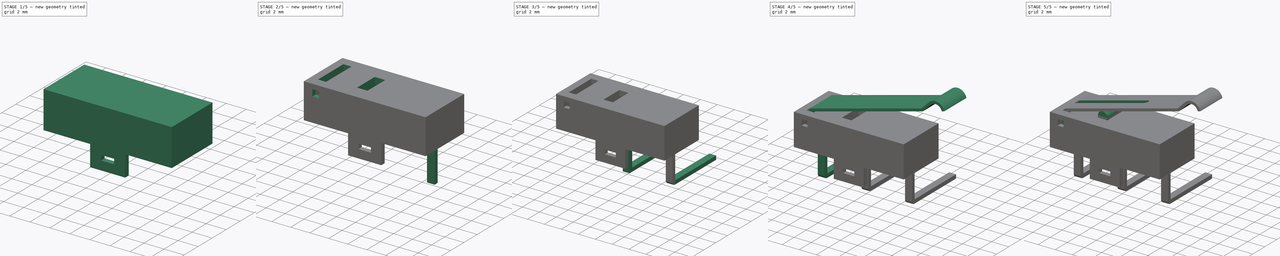
[diagram: build sequence overview — one tinted view per stage of 5, left to right]
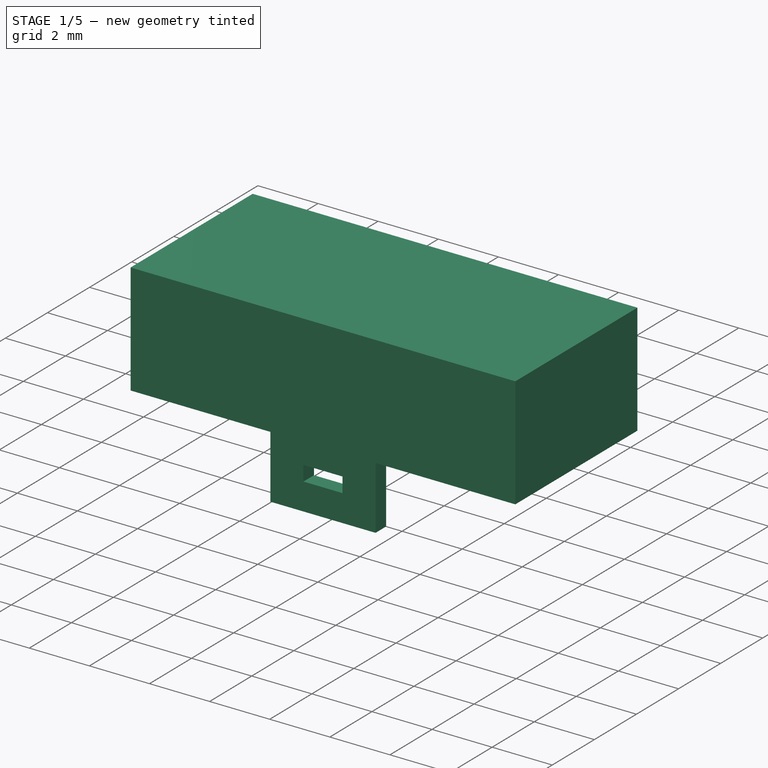
[diagram: stage 1 of 5 — iso view after this stage's code; geometry added in this stage tinted green]
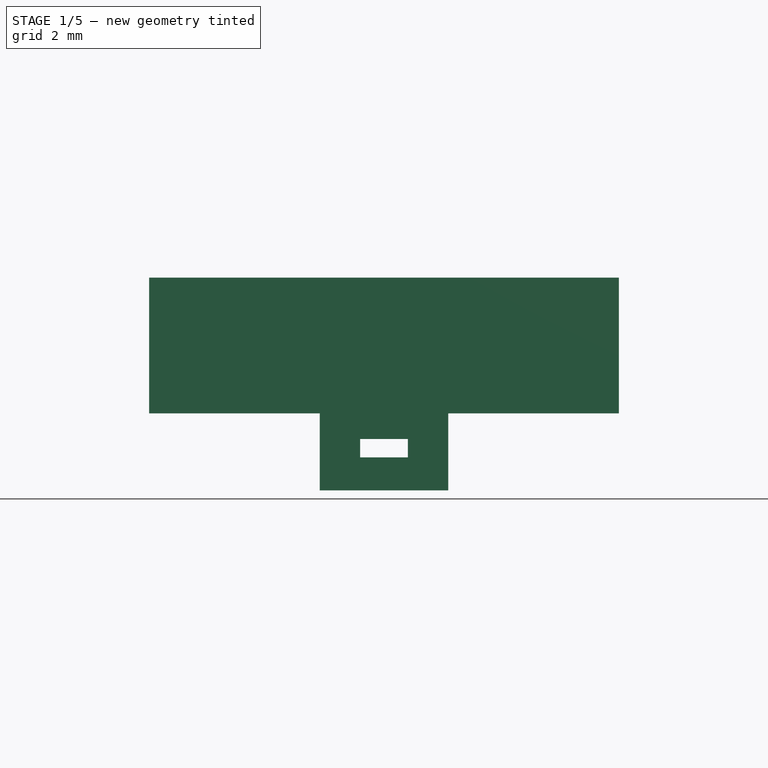
[diagram: stage 1 of 5 — front view after this stage's code; geometry added in this stage tinted green]
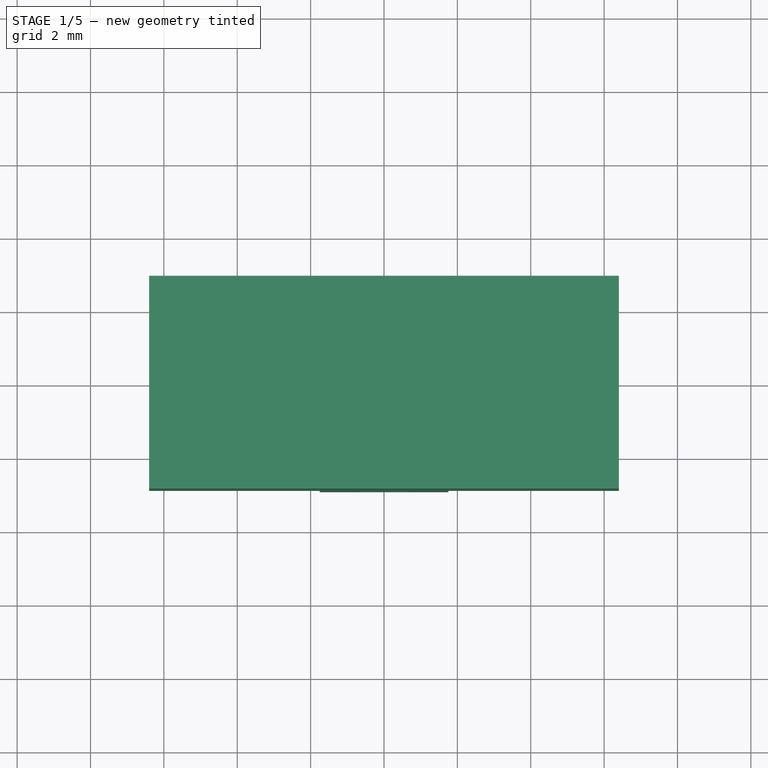
[diagram: stage 1 of 5 — top view after this stage's code; geometry added in this stage tinted green]
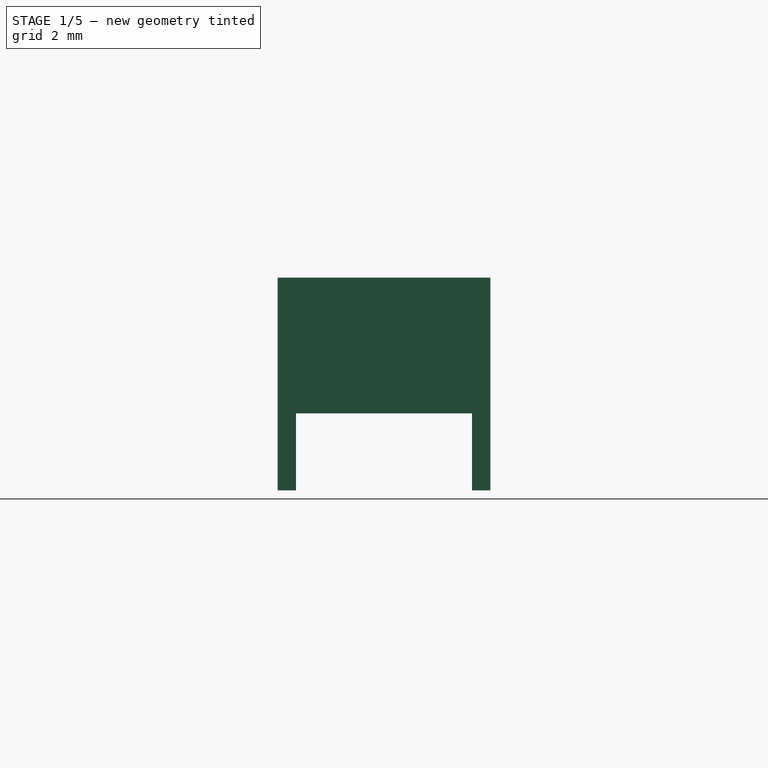
[diagram: stage 1 of 5 — right view after this stage's code; geometry added in this stage tinted green]
FCSTD DOCUMENT  (FreeCAD 0.21R30193 (Git))
Label: Microswitch_SPDT_Horizontal_R
Comment: This model is licensed under CC-BY 3.0.\n\nDon´t forget to share your modifications with the community.
License: Creative Commons Attribution
LicenseURL: http://creativecommons.org/licenses/by/4.0/
objects: Sketcher::SketchObject×21, PartDesign::Pad×13, PartDesign::Pocket×8, PartDesign::Body×7, PartDesign::ShapeBinder×5, PartDesign::Fillet×3, App::Part×1
note: 81 computed .brp shape members not serialized (recipe doc carries the construction recipe); baked Part::Feature solids carry a one-line shape summary decoded from their .brp

FEATURE [Sketcher::SketchObject] Sketch
  FullyConstrained = true
  MapMode = 5
  Placement = pos=(0,0,0) rot=(1,0,0;1.5708rad)
  Support = -> [XZ_Plane001]
  sketch-geometry (24):
    g0: LineSegment StartX=-6.4 StartY=-1.15 StartZ=0 EndX=-4.3 EndY=-1.15 EndZ=0
    g1: LineSegment StartX=-4.3 StartY=-1.15 StartZ=0 EndX=-3.95 EndY=-1.5 EndZ=0
    g2: LineSegment StartX=-3.95 StartY=-1.5 StartZ=0 EndX=-1.95 EndY=-1.5 EndZ=0
    g3: LineSegment StartX=-1.95 StartY=-1.5 StartZ=0 EndX=-1.6 EndY=-1.15 EndZ=0
    g4: LineSegment StartX=-1.6 StartY=-1.15 StartZ=0 EndX=1.6 EndY=-1.15 EndZ=0
    g5: LineSegment StartX=1.6 StartY=-1.15 StartZ=0 EndX=1.95 EndY=-1.5 EndZ=0
    g6: LineSegment StartX=1.95 StartY=-1.5 StartZ=0 EndX=3.95 EndY=-1.5 EndZ=0
    g7: LineSegment StartX=3.95 StartY=-1.5 StartZ=0 EndX=4.3 EndY=-1.15 EndZ=0
    g8: LineSegment StartX=4.3 StartY=-1.15 StartZ=0 EndX=6.4 EndY=-1.15 EndZ=0
    g9: LineSegment StartX=6.4 StartY=-1.15 StartZ=0 EndX=6.4 EndY=1.35 EndZ=0
    g10: LineSegment StartX=6.4 StartY=1.35 StartZ=0 EndX=5.8 EndY=1.35 EndZ=0
    g11: LineSegment StartX=5.8 StartY=1.35 StartZ=0 EndX=5.8 EndY=2.2 EndZ=0
    g12: LineSegment StartX=5.8 StartY=2.2 StartZ=0 EndX=4.65 EndY=2.2 EndZ=0
    g13: LineSegment StartX=4.65 StartY=2.2 StartZ=0 EndX=4.65 EndY=1.7 EndZ=0
    g14: LineSegment StartX=4.65 StartY=1.7 StartZ=0 EndX=1.6 EndY=1.7 EndZ=0
    g15: LineSegment StartX=1.6 StartY=1.7 StartZ=0 EndX=1.25 EndY=1.35 EndZ=0
    g16: LineSegment StartX=1.25 StartY=1.35 StartZ=0 EndX=-1.25 EndY=1.35 EndZ=0
    g17: LineSegment StartX=-1.25 StartY=1.35 StartZ=0 EndX=-1.6 EndY=1.7 EndZ=0
    g18: LineSegment StartX=-1.6 StartY=1.7 StartZ=0 EndX=-5.8 EndY=1.7 EndZ=0
    g19: LineSegment StartX=-5.8 StartY=1.7 StartZ=0 EndX=-5.8 EndY=1.35 EndZ=0
    g20: LineSegment StartX=-5.8 StartY=1.35 StartZ=0 EndX=-6.4 EndY=1.35 EndZ=0
    g21: LineSegment StartX=-6.4 StartY=1.35 StartZ=0 EndX=-6.4 EndY=-1.15 EndZ=0
    g22: Circle CenterX=-3.25 CenterY=0 CenterZ=0 NormalX=0 NormalY=0 NormalZ=1 AngleXU=0 Radius=1
    g23: Circle CenterX=3.25 CenterY=0 CenterZ=0 NormalX=0 NormalY=0 NormalZ=1 AngleXU=0 Radius=1
  constraints (73):
    c: Horizontal(g0)
    c: Coincident(g0,g1)
    c: Coincident(g1,g2)
    c: Horizontal(g2)
    c: Coincident(g2,g3)
    c: Coincident(g3,g4)
    c: Horizontal(g4)
    c: Coincident(g4,g5)
    c: Coincident(g5,g6)
    c: Horizontal(g6)
    c: Coincident(g6,g7)
    c: Coincident(g7,g8)
    c: Horizontal(g8)
    c: Coincident(g8,g9)
    c: Coincident(g9,g10)
    c: Horizontal(g10)
    c: Coincident(g10,g11)
    c: Vertical(g11)
    c: Coincident(g11,g12)
    c: Coincident(g12,g13)
    c: Vertical(g13)
    c: Coincident(g13,g14)
    c: Horizontal(g14)
    c: Coincident(g14,g15)
    c: Coincident(g15,g16)
    c: Coincident(g16,g17)
    c: Coincident(g17,g18)
    c: Coincident(g18,g19)
    c: Vertical(g19)
    c: Coincident(g19,g20)
    c: Horizontal(g20)
    c: Coincident(g20,g21)
    c: Coincident(g21,g0)
    c: Vertical(g21)
    c: Vertical(g9)
    c: Horizontal(g18)
    c: Horizontal(g14,g17)
    c: Horizontal(g2,g5)
    c: Diameter(g22) = 2
    c: Horizontal(g16)
    c: DistanceX(g20,g9) = 12.8
    c: Horizontal(g12)
    c: Equal(g23,g22)
    c: Horizontal(g0,g3)
    c: Horizontal(g3,g7)
    c: Equal(g6,g2)
    c: DistanceY(g6,g7) = 0.35
    c: DistanceY(g9,g9) = 2.5
    c: DistanceY(g11,g11) = 0.85
    c: DistanceX(g22,g23) = 6.5
    c: DistanceX(g-1,g23) = 3.25
    c: DistanceX(g20,g20) = 0.6
    c: DistanceX(g12,g12) = 1.15
    c: Angle(g2,g1) = 2.35619
    c: Perpendicular(g3,g1)
    c: Parallel(g1,g5)
    c: Perpendicular(g7,g5)
    c: DistanceY(g13,g13) = 0.5
    c: DistanceY(g15,g14) = 0.35
    c: Parallel(g1,g17)
    c: Perpendicular(g17,g15)
    c: Horizontal(g22,g23)
    c: DistanceX(g2,g2) = 2
    c: DistanceX(g0,g-1) = 6.4
    c: PointOnObject(g22,g-1)
    c: DistanceY(g6,g23) = 1.5
    c: Equal(g0,g8)
    c: DistanceX(g4,g4) = 3.2
    c: DistanceX(g10,g10) = 0.6
    c: Equal(g9,g21)
    c: DistanceX(g18,g18) = 4.2
    c: DistanceX(g16,g16) = 2.5
    c: DistanceY(g-1,g11) = 2.2
FEATURE [PartDesign::Pad] Pad
  Direction = (0,-1,-2e-16)
  Length = 5.8
  Length2 = 100
  Midplane = true
  Placement = pos=(0,0,0) rot=(1,0,0;1.5708rad)
  Profile = -> Sketch
  ReferenceAxis = -> Sketch [N_Axis]
  Type = 0
FEATURE [Sketcher::SketchObject] Sketch004
  ExternalGeometry = -> [Pad]
  FullyConstrained = true
  MapMode = 5
  Placement = pos=(0,-2.9,-6e-16) rot=(1,0,0;1.5708rad)
  Support = -> [Pad]
  sketch-geometry (14):
    g0: LineSegment StartX=1.75 StartY=1.35 StartZ=0 EndX=1.75 EndY=-0.75 EndZ=0
    g1: LineSegment StartX=1.75 StartY=-0.75 StartZ=0 EndX=-1.75 EndY=-0.75 EndZ=0
    g2: LineSegment StartX=-1.75 StartY=-0.75 StartZ=0 EndX=-1.75 EndY=1.35 EndZ=0
    g3: LineSegment StartX=-0.65 StartY=0.65 StartZ=0 EndX=0.65 EndY=0.65 EndZ=0
    g4: LineSegment StartX=0.65 StartY=0.65 StartZ=0 EndX=0.65 EndY=0.15 EndZ=0
    g5: LineSegment StartX=0.65 StartY=0.15 StartZ=0 EndX=-0.65 EndY=0.15 EndZ=0
    g6: LineSegment StartX=-0.65 StartY=0.15 StartZ=0 EndX=-0.65 EndY=0.65 EndZ=0
    g7: Circle CenterX=-5.3 CenterY=-2e-16 CenterZ=0 NormalX=0 NormalY=0 NormalZ=1 AngleXU=0 Radius=0.7
    g8: Circle CenterX=5.1 CenterY=-2e-16 CenterZ=0 NormalX=0 NormalY=0 NormalZ=1 AngleXU=0 Radius=0.5
    g9: LineSegment StartX=1.75 StartY=1.35 StartZ=0 EndX=6.4 EndY=1.35 EndZ=0
    g10: LineSegment StartX=6.4 StartY=1.35 StartZ=0 EndX=6.4 EndY=2.2 EndZ=0
    g11: LineSegment StartX=6.4 StartY=2.2 StartZ=0 EndX=-6.4 EndY=2.2 EndZ=0
    g12: LineSegment StartX=-6.4 StartY=2.2 StartZ=0 EndX=-6.4 EndY=1.35 EndZ=0
    g13: LineSegment StartX=-6.4 StartY=1.35 StartZ=0 EndX=-1.75 EndY=1.35 EndZ=0
  constraints (40):
    c: Coincident(g0,g1)
    c: Coincident(g1,g2)
    c: Horizontal(g1)
    c: Vertical(g0)
    c: Vertical(g2)
    c: Coincident(g3,g4)
    c: Coincident(g4,g5)
    c: Coincident(g5,g6)
    c: Coincident(g6,g3)
    c: Horizontal(g3)
    c: Horizontal(g5)
    c: Vertical(g4)
    c: Vertical(g6)
    c: DistanceX(g3,g3) = 1.3
    c: DistanceY(g4,g4) = 0.5
    c: DistanceX(g1,g1) = 3.5
    c: DistanceY(g-5,g1) = 0.4
    c: Coincident(g9,g0)
    c: Horizontal(g9)
    c: Coincident(g9,g10)
    c: Vertical(g10)
    c: Coincident(g10,g11)
    c: Horizontal(g11)
    c: Coincident(g11,g12)
    c: Vertical(g12)
    c: Coincident(g12,g13)
    c: Coincident(g13,g2)
    c: Horizontal(g13)
    c: DistanceY(g1,g5) = 0.9
    c: DistanceX(g5,g-1) = 0.65
    c: DistanceX(g-1,g0) = 1.75
    c: Horizontal(g7,g-3)
    c: Horizontal(g8,g-4)
    c: Diameter(g8) = 1
    c: Diameter(g7) = 1.4
    c: DistanceX(g8,g-8) = 1.3
    c: DistanceX(g-7,g7) = 1.1
    c: Horizontal(g10,g-9)
    c: Coincident(g12,g-7)
    c: Coincident(g9,g-8)
FEATURE [PartDesign::Pocket] Pocket
  BaseFeature = -> Pad
  Direction = (0,1,2e-16)
  Length = 0.6
  Length2 = 100
  Placement = pos=(0,0,0) rot=(1,0,0;1.5708rad)
  Profile = -> Sketch004
  ReferenceAxis = -> Sketch004 [N_Axis]
  Type = 0
FEATURE [Sketcher::SketchObject] Sketch005
  ExternalGeometry = -> [Pocket]
  FullyConstrained = true
  MapMode = 5
  Placement = pos=(0,2.9,6e-16) rot=(-1,0,0;1.5708rad)
  Support = -> [Pocket]
  sketch-geometry (14):
    g0: LineSegment StartX=-0.65 StartY=-0.15 StartZ=0 EndX=0.65 EndY=-0.15 EndZ=0
    g1: LineSegment StartX=0.65 StartY=-0.15 StartZ=0 EndX=0.65 EndY=-0.65 EndZ=0
    g2: LineSegment StartX=0.65 StartY=-0.65 StartZ=0 EndX=-0.65 EndY=-0.65 EndZ=0
    g3: LineSegment StartX=-0.65 StartY=-0.65 StartZ=0 EndX=-0.65 EndY=-0.15 EndZ=0
    g4: Circle CenterX=5.3 CenterY=0 CenterZ=0 NormalX=0 NormalY=0 NormalZ=1 AngleXU=0 Radius=0.7
    g5: Circle CenterX=-5.3 CenterY=0 CenterZ=0 NormalX=0 NormalY=0 NormalZ=1 AngleXU=0 Radius=0.7
    g6: LineSegment StartX=1.75 StartY=0.75 StartZ=0 EndX=-1.75 EndY=0.75 EndZ=0
    g7: LineSegment StartX=-1.75 StartY=0.75 StartZ=0 EndX=-1.75 EndY=-1.35 EndZ=0
    g8: LineSegment StartX=-1.75 StartY=-1.35 StartZ=0 EndX=-6.4 EndY=-1.35 EndZ=0
    g9: LineSegment StartX=-6.4 StartY=-1.35 StartZ=0 EndX=-6.4 EndY=-2.2 EndZ=0
    g10: LineSegment StartX=-6.4 StartY=-2.2 StartZ=0 EndX=6.4 EndY=-2.2 EndZ=0
    g11: LineSegment StartX=6.4 StartY=-2.2 StartZ=0 EndX=6.4 EndY=-1.35 EndZ=0
    g12: LineSegment StartX=6.4 StartY=-1.35 StartZ=0 EndX=1.75 EndY=-1.35 EndZ=0
    g13: LineSegment StartX=1.75 StartY=-1.35 StartZ=0 EndX=1.75 EndY=0.75 EndZ=0
  constraints (40):
    c: Coincident(g0,g1)
    c: Coincident(g1,g2)
    c: Coincident(g2,g3)
    c: Coincident(g3,g0)
    c: Horizontal(g0)
    c: Horizontal(g2)
    c: Vertical(g1)
    c: Vertical(g3)
    c: PointOnObject(g4,g-1)
    c: PointOnObject(g5,g-1)
    c: Equal(g5,g4)
    c: Diameter(g4) = 1.4
    c: DistanceX(g4,g-3) = 1.1
    c: DistanceX(g-4,g5) = 1.1
    c: Horizontal(g6)
    c: Coincident(g6,g7)
    c: Vertical(g7)
    c: Coincident(g7,g8)
    c: Horizontal(g8)
    c: Coincident(g8,g9)
    c: Vertical(g9)
    c: Coincident(g9,g10)
    c: Horizontal(g10)
    c: Coincident(g10,g11)
    c: Vertical(g11)
    c: Coincident(g11,g12)
    c: Horizontal(g12)
    c: Coincident(g12,g13)
    c: Coincident(g13,g6)
    c: DistanceX(g0,g0) = 1.3
    c: DistanceX(g-1,g0) = 0.65
    c: DistanceY(g1,g1) = 0.5
    c: DistanceY(g0,g6) = 0.9
    c: DistanceY(g6,g-5) = 0.4
    c: Vertical(g13)
    c: DistanceX(g6,g6) = 3.5
    c: DistanceX(g6,g-1) = 1.75
    c: Coincident(g11,g-3)
    c: Coincident(g-6,g8)
    c: Horizontal(g10,g-7)
FEATURE [PartDesign::Pocket] Pocket001
  BaseFeature = -> Pocket
  Direction = (0,-1,-2e-16)
  Length = 0.6
  Length2 = 100
  Placement = pos=(0,0,0) rot=(1,0,0;1.5708rad)
  Profile = -> Sketch005
  ReferenceAxis = -> Sketch005 [N_Axis]
  Type = 0
FEATURE [PartDesign::Body] Body  label="Bottom"
  Group = -> [Sketch,Pad,Sketch004,Pocket,Sketch005,Pocket001]
  Origin = -> Origin001
  Tip = -> Pocket001
FEATURE [PartDesign::ShapeBinder] ShapeBinder003
  Support = -> [Pocket001]
  TraceSupport = false
FEATURE [Sketcher::SketchObject] Sketch006
  ExternalGeometry = -> [ShapeBinder003]
  FullyConstrained = true
  MapMode = 5
  Placement = pos=(0,0,0) rot=(1,0,0;1.5708rad)
  Support = -> [XZ_Plane005]
  sketch-geometry (12):
    g0: LineSegment StartX=0.65 StartY=0.15 StartZ=0 EndX=-0.65 EndY=0.15 EndZ=0
    g1: LineSegment StartX=-0.65 StartY=0.15 StartZ=0 EndX=-0.65 EndY=0.65 EndZ=0
    g2: LineSegment StartX=-0.65 StartY=0.65 StartZ=0 EndX=0.65 EndY=0.65 EndZ=0
    g3: LineSegment StartX=0.65 StartY=0.65 StartZ=0 EndX=0.65 EndY=0.15 EndZ=0
    g4: LineSegment StartX=-6.4 StartY=1.35 StartZ=0 EndX=-1.75 EndY=1.35 EndZ=0
    g5: LineSegment StartX=-1.75 StartY=1.35 StartZ=0 EndX=-1.75 EndY=-0.75 EndZ=0
    g6: LineSegment StartX=-1.75 StartY=-0.75 StartZ=0 EndX=1.75 EndY=-0.75 EndZ=0
    g7: LineSegment StartX=1.75 StartY=1.35 StartZ=0 EndX=6.4 EndY=1.35 EndZ=0
    g8: LineSegment StartX=6.4 StartY=1.35 StartZ=0 EndX=6.4 EndY=5.05 EndZ=0
    g9: LineSegment StartX=6.4 StartY=5.05 StartZ=0 EndX=-6.4 EndY=5.05 EndZ=0
    g10: LineSegment StartX=-6.4 StartY=5.05 StartZ=0 EndX=-6.4 EndY=1.35 EndZ=0
    g11: LineSegment StartX=1.75 StartY=1.35 StartZ=0 EndX=1.75 EndY=-0.75 EndZ=0
  constraints (33):
    c: Coincident(g0,g1)
    c: Coincident(g1,g2)
    c: Coincident(g2,g3)
    c: Coincident(g3,g0)
    c: Horizontal(g0)
    c: Horizontal(g2)
    c: Vertical(g1)
    c: Vertical(g3)
    c: Coincident(g0,g-5)
    c: Coincident(g1,g-4)
    c: Coincident(g4,g5)
    c: Coincident(g5,g6)
    c: Coincident(g7,g8)
    c: Vertical(g8)
    c: Coincident(g8,g9)
    c: Horizontal(g9)
    c: Coincident(g9,g10)
    c: Coincident(g10,g4)
    c: Vertical(g10)
    c: DistanceY(g-1,g9) = 5.05
    c: DistanceY(g5,g-1) = 0.75
    c: Coincident(g7,g-8)
    c: Coincident(g4,g-7)
    c: Horizontal(g4)
    c: Horizontal(g7)
    c: Vertical(g5)
    c: Horizontal(g6)
    c: Coincident(g11,g7)
    c: Coincident(g11,g6)
    c: Vertical(g11)
    c: Equal(g4,g7)
    c: Coincident(g6,g-9)
    c: DistanceY(g8,g8) = 3.7
FEATURE [PartDesign::Pad] Pad004
  Direction = (0,-1,-2e-16)
  Length = 5.8
  Length2 = 100
  Midplane = true
  Placement = pos=(0,0,0) rot=(1,0,0;1.5708rad)
  Profile = -> Sketch006
  ReferenceAxis = -> Sketch006 [N_Axis]
  Type = 0
FEATURE [PartDesign::Body] Body001  label="Pin_NC"
  Group = -> [Sketch001,Pad001,Sketch025,Pad017,Fillet005]
  Origin = -> Origin002
  Tip = -> Fillet005
FEATURE [Sketcher::SketchObject] Sketch026
  ExternalGeometry = -> [Pad004]
  FullyConstrained = true
  MapMode = 5
  Placement = pos=(0,0,-0.75) rot=(1,0,0;3.14159rad)
  Support = -> [Pad004]
  sketch-geometry (4):
    g0: LineSegment StartX=-5.9 StartY=2.4 StartZ=0 EndX=5.9 EndY=2.4 EndZ=0
    g1: LineSegment StartX=5.9 StartY=2.4 StartZ=0 EndX=5.9 EndY=-2.4 EndZ=0
    g2: LineSegment StartX=5.9 StartY=-2.4 StartZ=0 EndX=-5.9 EndY=-2.4 EndZ=0
    g3: LineSegment StartX=-5.9 StartY=-2.4 StartZ=0 EndX=-5.9 EndY=2.4 EndZ=0
  constraints (12):
    c: Coincident(g0,g1)
    c: Coincident(g1,g2)
    c: Coincident(g2,g3)
    c: Coincident(g3,g0)
    c: Horizontal(g0)
    c: Horizontal(g2)
    c: Vertical(g1)
    c: Vertical(g3)
    c: DistanceY(g-4,g1) = 0.5
    c: DistanceX(g1,g-4) = 0.5
    c: DistanceX(g-3,g0) = 0.5
    c: DistanceY(g0,g-3) = 0.5
FEATURE [PartDesign::Pocket] Pocket008
  BaseFeature = -> Pad004
  Direction = (0,-2e-16,1)
  Length = 5.15
  Length2 = 5
  Placement = pos=(0,0,0) rot=(1,0,0;1.5708rad)
  Profile = -> Sketch026
  ReferenceAxis = -> Sketch026 [N_Axis]
  Type = 0
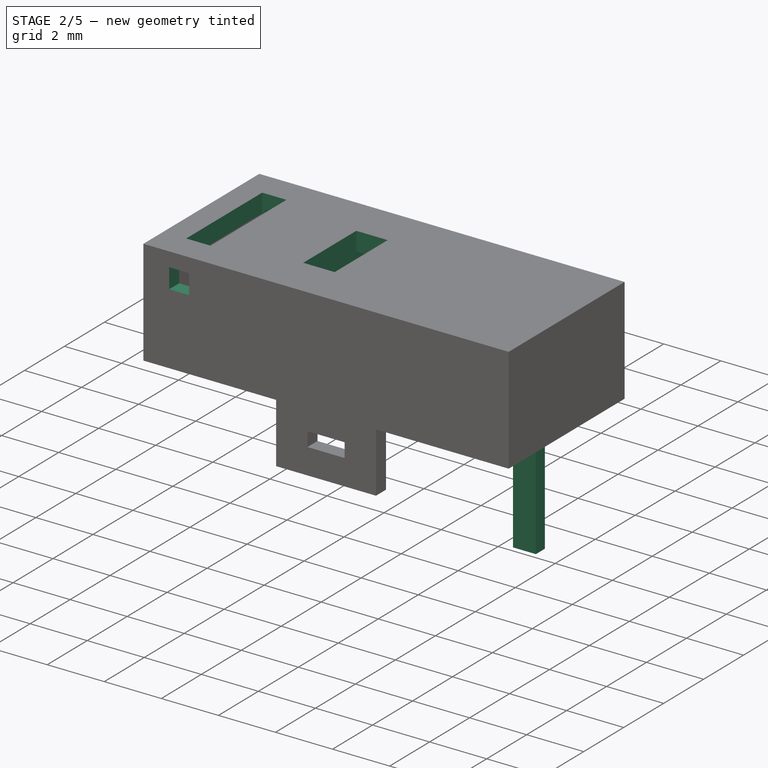
[diagram: stage 2 of 5 — iso view after this stage's code; geometry added in this stage tinted green]
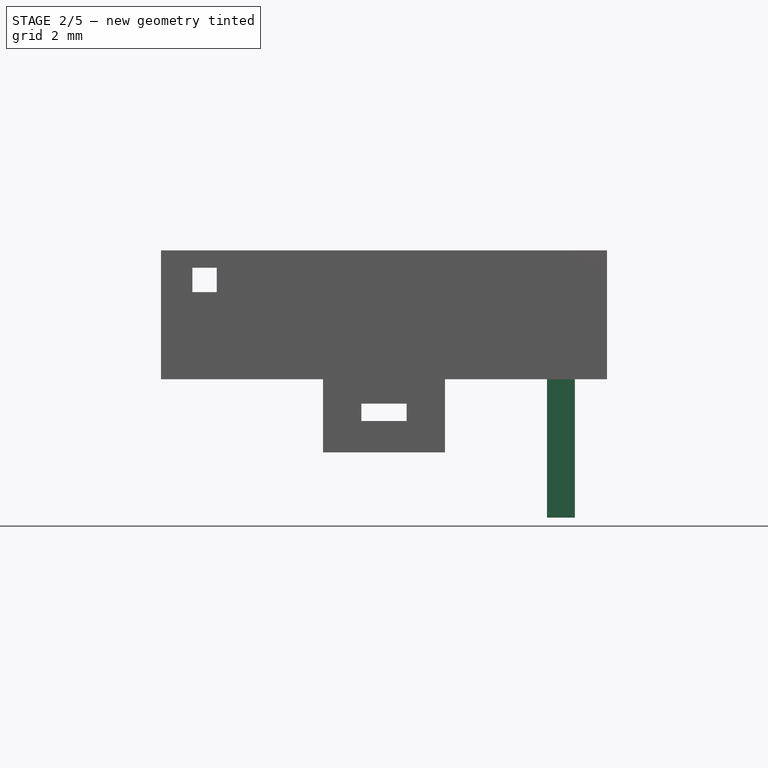
[diagram: stage 2 of 5 — front view after this stage's code; geometry added in this stage tinted green]
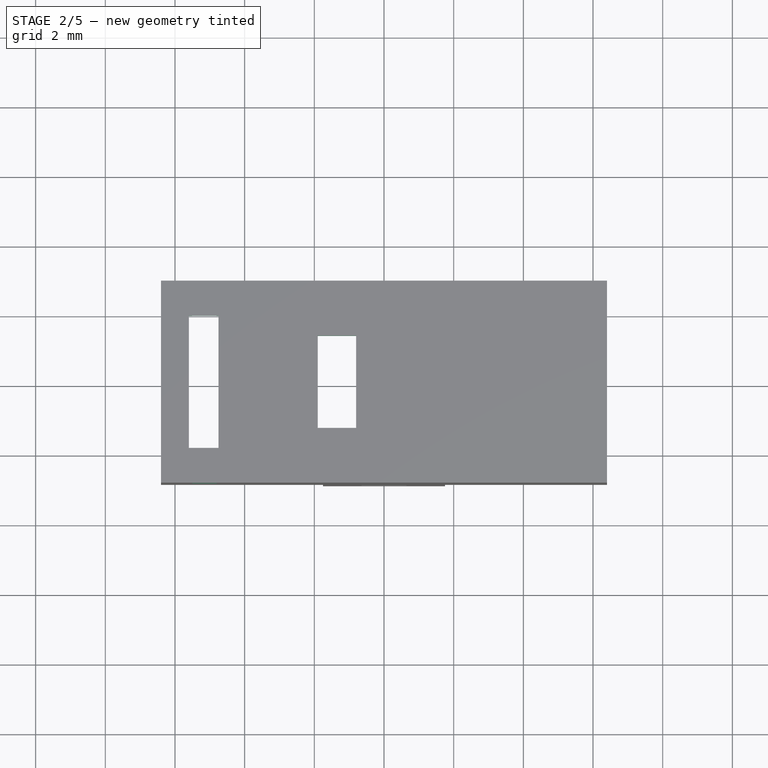
[diagram: stage 2 of 5 — top view after this stage's code; geometry added in this stage tinted green]
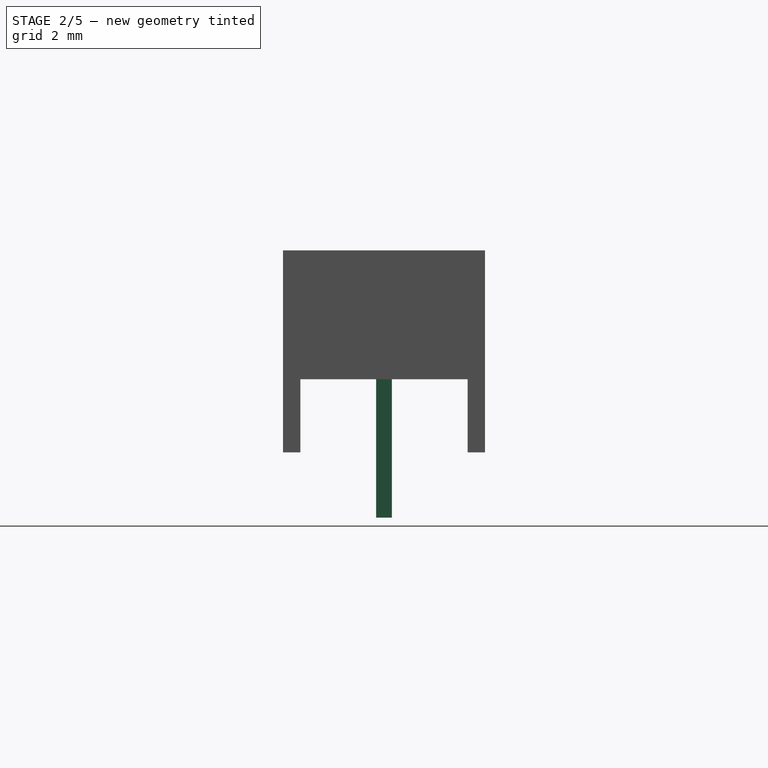
[diagram: stage 2 of 5 — right view after this stage's code; geometry added in this stage tinted green]
FEATURE [Sketcher::SketchObject] Sketch001
  FullyConstrained = true
  MapMode = 5
  Placement = pos=(0,0,0) rot=(1,0,0;1.5708rad)
  Support = -> [XZ_Plane002]
  sketch-geometry (10):
    g0: LineSegment StartX=5.48 StartY=-2.625 StartZ=0 EndX=5.48 EndY=4.6 EndZ=0
    g1: LineSegment StartX=5.48 StartY=4.6 StartZ=0 EndX=2.68 EndY=4.6 EndZ=0
    g2: LineSegment StartX=2.68 StartY=4.6 StartZ=0 EndX=2.68 EndY=3.8 EndZ=0
    g3: LineSegment StartX=2.68 StartY=3.8 StartZ=0 EndX=2.98 EndY=3.8 EndZ=0
    g4: LineSegment StartX=2.98 StartY=3.8 StartZ=0 EndX=2.98 EndY=3.7 EndZ=0
    g5: LineSegment StartX=2.98 StartY=3.7 StartZ=0 EndX=3.48 EndY=3.7 EndZ=0
    g6: LineSegment StartX=3.48 StartY=3.7 StartZ=0 EndX=3.48 EndY=3.8 EndZ=0
    g7: LineSegment StartX=3.48 StartY=3.8 StartZ=0 EndX=4.68 EndY=3.8 EndZ=0
    g8: LineSegment StartX=4.68 StartY=3.8 StartZ=0 EndX=4.68 EndY=-2.625 EndZ=0
    g9: LineSegment StartX=4.68 StartY=-2.625 StartZ=0 EndX=5.48 EndY=-2.625 EndZ=0
  constraints (31):
    c: Vertical(g0)
    c: DistanceY(g0,g0) = 7.225
    c: Coincident(g0,g1)
    c: Horizontal(g1)
    c: Coincident(g1,g2)
    c: Vertical(g2)
    c: Coincident(g2,g3)
    c: Coincident(g3,g4)
    c: Vertical(g4)
    c: Coincident(g4,g5)
    c: Horizontal(g5)
    c: Coincident(g5,g6)
    c: Coincident(g6,g7)
    c: Horizontal(g7)
    c: Coincident(g7,g8)
    c: Vertical(g8)
    c: Coincident(g8,g9)
    c: Coincident(g9,g0)
    c: Horizontal(g9)
    c: DistanceX(g9,g9) = 0.8
    c: Horizontal(g3)
    c: Horizontal(g3,g6)
    c: Vertical(g6)
    c: Equal(g9,g2)
    c: DistanceY(g-1,g0) = 4.6
    c: DistanceX(g1,g1) = 2.8
    c: DistanceX(g3,g3) = 0.3
    c: DistanceX(g7,g7) = 1.2
    c: DistanceY(g6,g6) = 0.1
    c: DistanceX(g-1,g8) = 4.68
    c: DistanceY(g8,g-1) = 2.625
FEATURE [PartDesign::Pad] Pad001
  Direction = (0,-1,-2e-16)
  Length = 0.45
  Length2 = 100
  Midplane = true
  Placement = pos=(0,0,0) rot=(1,0,0;1.5708rad)
  Profile = -> Sketch001
  ReferenceAxis = -> Sketch001 [N_Axis]
  Type = 0
FEATURE [Sketcher::SketchObject] Sketch027
  FullyConstrained = true
  MapMode = 5
  Placement = pos=(0,0,5.05) rot=(0,0,1;3.14159rad)
  Support = -> [Pocket008]
  sketch-geometry (5):
    g0: LineSegment StartX=1.9 StartY=-1.325 StartZ=0 EndX=1.9 EndY=1.325 EndZ=0
    g1: LineSegment StartX=1.9 StartY=1.325 StartZ=0 EndX=0.8 EndY=1.325 EndZ=0
    g2: LineSegment StartX=0.8 StartY=1.325 StartZ=0 EndX=0.8 EndY=-1.325 EndZ=0
    g3: LineSegment StartX=0.8 StartY=-1.325 StartZ=0 EndX=1.9 EndY=-1.325 EndZ=0
    g4: GeomPoint X=1.35 Y=0 Z=0
  constraints (13):
    c: Coincident(g0,g1)
    c: Coincident(g1,g2)
    c: Coincident(g2,g3)
    c: Coincident(g3,g0)
    c: Horizontal(g1)
    c: Horizontal(g3)
    c: Vertical(g0)
    c: Vertical(g2)
    c: Symmetric(g1,g0,g4)
    c: PointOnObject(g4,g-1)
    c: DistanceX(g1) = 0.8
    c: DistanceX(g3,g3) = 1.1
    c: DistanceY(g0,g0) = 2.65
FEATURE [PartDesign::Pocket] Pocket009
  BaseFeature = -> Pocket008
  Direction = (0,2e-16,-1)
  Length = 5
  Length2 = 5
  Placement = pos=(0,0,0) rot=(1,0,0;1.5708rad)
  Profile = -> Sketch027
  ReferenceAxis = -> Sketch027 [N_Axis]
  Type = 2
FEATURE [Sketcher::SketchObject] Sketch028
  ExternalGeometry = -> [Pocket009]
  FullyConstrained = true
  MapMode = 5
  Placement = pos=(0,-1e-15,4.4) rot=(1,0,0;3.14159rad)
  Support = -> [Pocket009]
  sketch-geometry (8):
    g0: LineSegment StartX=-2.6 StartY=-2.4 StartZ=0 EndX=-1.9 EndY=-2.4 EndZ=0
    g1: LineSegment StartX=-1.9 StartY=-2.4 StartZ=0 EndX=-1.9 EndY=2.4 EndZ=0
    g2: LineSegment StartX=-1.9 StartY=2.4 StartZ=0 EndX=-2.6 EndY=2.4 EndZ=0
    g3: LineSegment StartX=-2.6 StartY=2.4 StartZ=0 EndX=-2.6 EndY=-2.4 EndZ=0
    g4: LineSegment StartX=-0.1 StartY=-2.4 StartZ=0 EndX=-0.8 EndY=-2.4 EndZ=0
    g5: LineSegment StartX=-0.8 StartY=-2.4 StartZ=0 EndX=-0.8 EndY=2.4 EndZ=0
    g6: LineSegment StartX=-0.8 StartY=2.4 StartZ=0 EndX=-0.1 EndY=2.4 EndZ=0
    g7: LineSegment StartX=-0.1 StartY=2.4 StartZ=0 EndX=-0.1 EndY=-2.4 EndZ=0
  constraints (24):
    c: Coincident(g0,g1)
    c: Coincident(g1,g2)
    c: Coincident(g2,g3)
    c: Coincident(g3,g0)
    c: Horizontal(g0)
    c: Horizontal(g2)
    c: Vertical(g1)
    c: Vertical(g3)
    c: PointOnObject(g0,g-6)
    c: PointOnObject(g1,g-5)
    c: Coincident(g4,g5)
    c: Coincident(g5,g6)
    c: Coincident(g6,g7)
    c: Coincident(g7,g4)
    c: Horizontal(g4)
    c: Horizontal(g6)
    c: Vertical(g5)
    c: Vertical(g7)
    c: PointOnObject(g4,g-6)
    c: PointOnObject(g5,g-5)
    c: Vertical(g5,g-3)
    c: Vertical(g1,g-4)
    c: Equal(g6,g2)
    c: DistanceX(g6,g6) = 0.7
FEATURE [PartDesign::Pad] Pad018
  BaseFeature = -> Pocket009
  Direction = (0,2e-16,-1)
  Length = 0.8
  Length2 = 10
  Placement = pos=(0,0,0) rot=(1,0,0;1.5708rad)
  Profile = -> Sketch028
  ReferenceAxis = -> Sketch028 [N_Axis]
  Type = 0
FEATURE [Sketcher::SketchObject] Sketch029
  ExternalGeometry = -> [Pad018]
  FullyConstrained = true
  MapMode = 5
  Placement = pos=(0,0,5.05) rot=(0,0,1;3.14159rad)
  Support = -> [Pad018]
  sketch-geometry (5):
    g0: LineSegment StartX=4.75 StartY=-1.9 StartZ=0 EndX=4.75 EndY=1.9 EndZ=0
    g1: LineSegment StartX=4.75 StartY=1.9 StartZ=0 EndX=5.6 EndY=1.9 EndZ=0
    g2: LineSegment StartX=5.6 StartY=1.9 StartZ=0 EndX=5.6 EndY=-1.9 EndZ=0
    g3: LineSegment StartX=5.6 StartY=-1.9 StartZ=0 EndX=4.75 EndY=-1.9 EndZ=0
    g4: GeomPoint X=5.175 Y=0 Z=0
  constraints (13):
    c: Coincident(g0,g1)
    c: Coincident(g1,g2)
    c: Coincident(g2,g3)
    c: Coincident(g3,g0)
    c: Horizontal(g1)
    c: Horizontal(g3)
    c: Vertical(g0)
    c: Vertical(g2)
    c: Symmetric(g1,g0,g4)
    c: PointOnObject(g4,g-1)
    c: DistanceY(g2,g2) = 3.8
    c: DistanceX(g1,g1) = 0.85
    c: DistanceX(g1,g-3) = 0.8
FEATURE [PartDesign::Pocket] Pocket010
  BaseFeature = -> Pad018
  Direction = (0,2e-16,-1)
  Length = 5
  Length2 = 5
  Placement = pos=(0,0,0) rot=(1,0,0;1.5708rad)
  Profile = -> Sketch029
  ReferenceAxis = -> Sketch029 [N_Axis]
  Type = 2
FEATURE [Sketcher::SketchObject] Sketch030
  ExternalGeometry = -> [Pocket010]
  FullyConstrained = true
  MapMode = 5
  Placement = pos=(0,-2.9,-6e-16) rot=(1,0,0;1.5708rad)
  Support = -> [Pocket010]
  sketch-geometry (5):
    g0: LineSegment StartX=-5.5 StartY=4.55 StartZ=0 EndX=-5.5 EndY=3.85 EndZ=0
    g1: LineSegment StartX=-5.5 StartY=3.85 StartZ=0 EndX=-4.8 EndY=3.85 EndZ=0
    g2: LineSegment StartX=-4.8 StartY=3.85 StartZ=0 EndX=-4.8 EndY=4.55 EndZ=0
    g3: LineSegment StartX=-4.8 StartY=4.55 StartZ=0 EndX=-5.5 EndY=4.55 EndZ=0
    g4: GeomPoint X=-5.15 Y=4.2 Z=0
  constraints (13):
    c: Coincident(g0,g1)
    c: Coincident(g1,g2)
    c: Coincident(g2,g3)
    c: Coincident(g3,g0)
    c: Horizontal(g1)
    c: Horizontal(g3)
    c: Vertical(g0)
    c: Vertical(g2)
    c: Symmetric(g1,g0,g4)
    c: Equal(g3,g2)
    c: DistanceX(g1,g1) = 0.7
    c: DistanceY(g0,g-3) = 0.5
    c: DistanceX(g-3,g0) = 0.9
FEATURE [PartDesign::Pocket] Pocket011
  BaseFeature = -> Pocket010
  Direction = (0,1,2e-16)
  Length = 5
  Length2 = 5
  Placement = pos=(0,0,0) rot=(1,0,0;1.5708rad)
  Profile = -> Sketch030
  ReferenceAxis = -> Sketch030 [N_Axis]
  Type = 1
FEATURE [PartDesign::Body] Body004  label="Top"
  Group = -> [Sketch006,Pad004,ShapeBinder003,Sketch026,Pocket008,Sketch027,Pocket009,Sketch028,Pad018,Sketch029,Pocket010,Sketch030,Pocket011]
  Origin = -> Origin005
  Tip = -> Pocket011
FEATURE [App::Part] Part  label="XKB_DM1-16UC-1"
  Group = -> [Body,Body001,Body002,Body003,Body004,Body005,Body006]
  Origin = -> Origin
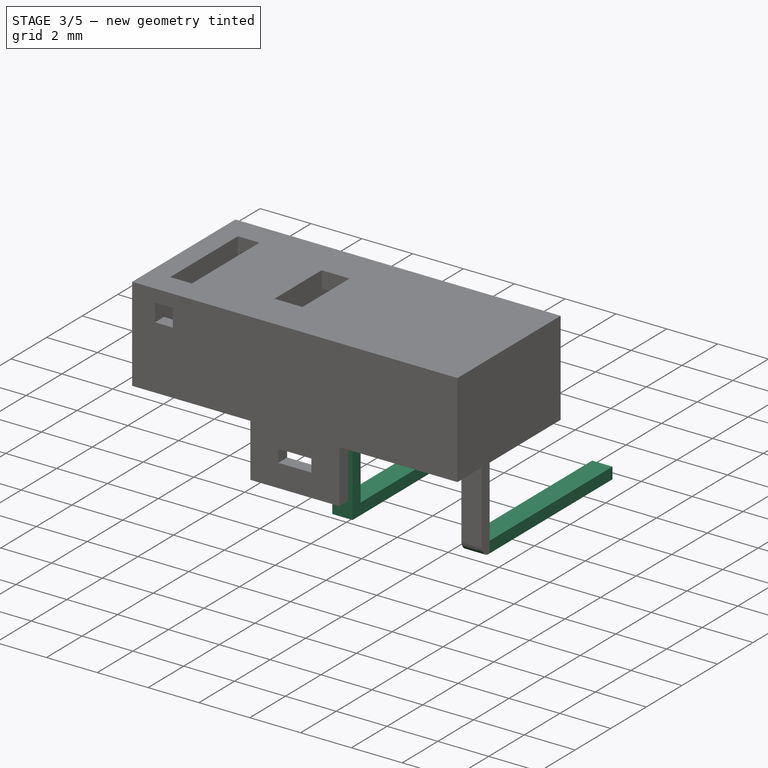
[diagram: stage 3 of 5 — iso view after this stage's code; geometry added in this stage tinted green]
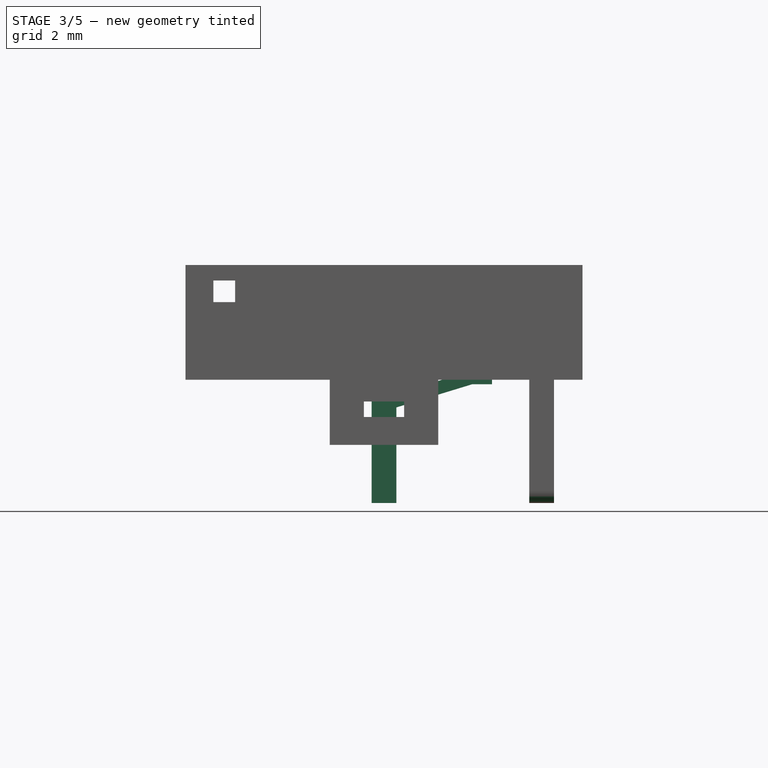
[diagram: stage 3 of 5 — front view after this stage's code; geometry added in this stage tinted green]
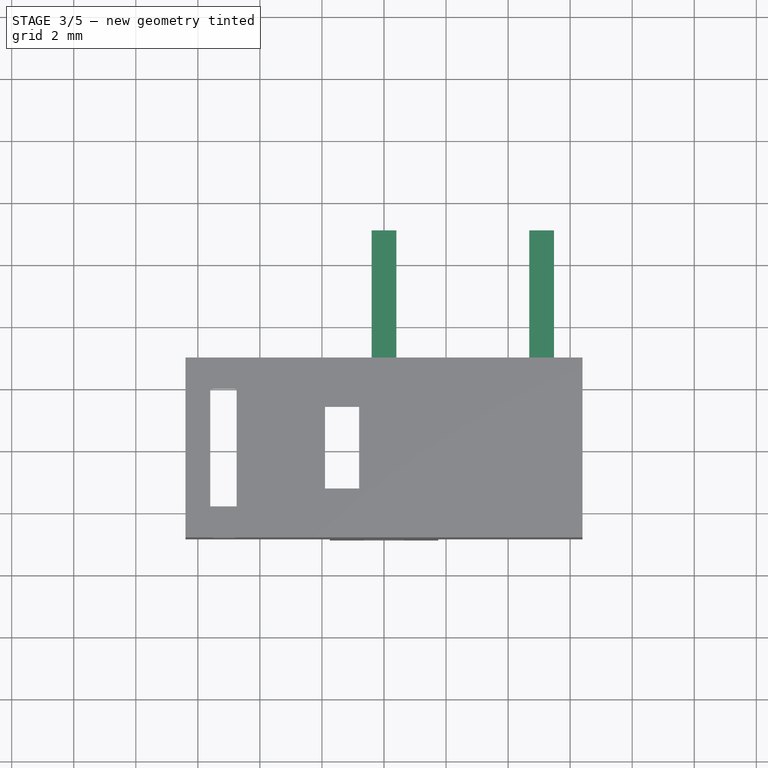
[diagram: stage 3 of 5 — top view after this stage's code; geometry added in this stage tinted green]
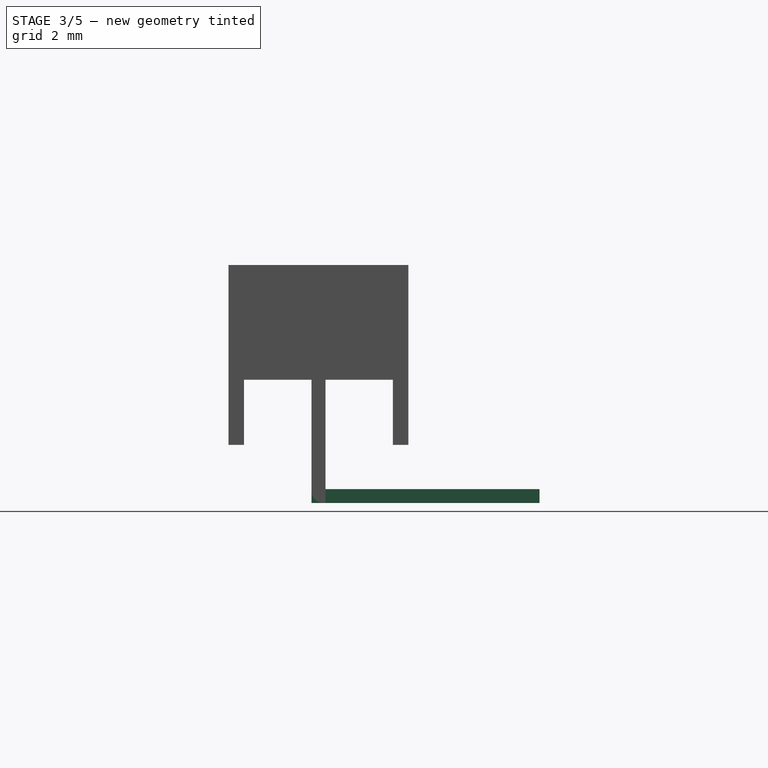
[diagram: stage 3 of 5 — right view after this stage's code; geometry added in this stage tinted green]
FEATURE [PartDesign::ShapeBinder] ShapeBinder
  Placement = pos=(0,-0.225,0) rot=(0,0,1;0rad)
  Support = -> [Pad001]
  TraceSupport = false
FEATURE [Sketcher::SketchObject] Sketch002
  ExternalGeometry = -> [ShapeBinder]
  FullyConstrained = true
  MapMode = 5
  Placement = pos=(0,0,0) rot=(1,0,0;1.5708rad)
  Support = -> [XZ_Plane003]
  sketch-geometry (12):
    g0: LineSegment StartX=-0.4 StartY=-2.625 StartZ=0 EndX=-0.4 EndY=0.909572 EndZ=0
    g1: LineSegment StartX=0.4 StartY=0.457892 StartZ=0 EndX=2.84795 EndY=1.20543 EndZ=0
    g2: LineSegment StartX=2.84795 StartY=1.20543 StartZ=0 EndX=3.48 EndY=1.20543 EndZ=0
    g3: LineSegment StartX=3.48 StartY=1.20543 StartZ=0 EndX=3.48 EndY=3.06272 EndZ=0
    g4: LineSegment StartX=3.48 StartY=3.06272 StartZ=0 EndX=2.98 EndY=3.06272 EndZ=0
    g5: LineSegment StartX=2.98 StartY=3.06272 StartZ=0 EndX=2.98 EndY=2.48242 EndZ=0
    g6: LineSegment StartX=2.98 StartY=2.48242 StartZ=0 EndX=2.48712 EndY=2.48242 EndZ=0
    g7: LineSegment StartX=2.48712 StartY=2.48242 StartZ=0 EndX=2.48712 EndY=1.53533 EndZ=0
    g8: LineSegment StartX=2.48712 StartY=1.53533 StartZ=0 EndX=0.437957 EndY=0.909572 EndZ=0
    g9: LineSegment StartX=0.437957 StartY=0.909572 StartZ=0 EndX=-0.4 EndY=0.909572 EndZ=0
    g10: LineSegment StartX=-0.4 StartY=-2.625 StartZ=0 EndX=0.4 EndY=-2.625 EndZ=0
    g11: LineSegment StartX=0.4 StartY=-2.625 StartZ=0 EndX=0.4 EndY=0.457892 EndZ=0
  constraints (31):
    c: Vertical(g0)
    c: DistanceX(g0,g-1) = 0.4
    c: Coincident(g1,g2)
    c: Horizontal(g2)
    c: Coincident(g2,g3)
    c: Vertical(g3)
    c: Coincident(g3,g4)
    c: Coincident(g4,g5)
    c: Vertical(g5)
    c: Coincident(g5,g6)
    c: Coincident(g6,g7)
    c: Vertical(g7)
    c: Coincident(g7,g8)
    c: Coincident(g8,g9)
    c: Coincident(g9,g0)
    c: Horizontal(g6)
    c: Horizontal(g4)
    c: Equal(g4,g-3)
    c: Vertical(g3,g-3)
    c: Parallel(g8,g1)
    c: Horizontal(g9)
    c: Block(g7)
    c: Block(g8)
    c: Block(g1)
    c: Block(g3)
    c: Coincident(g0,g10)
    c: Horizontal(g10)
    c: Coincident(g10,g11)
    c: Coincident(g11,g1)
    c: Vertical(g11)
    c: Horizontal(g10,g-5)
FEATURE [PartDesign::Pad] Pad002
  Direction = (0,-1,-2e-16)
  Length = 0.45
  Length2 = 100
  Midplane = true
  Placement = pos=(0,0,0) rot=(1,0,0;1.5708rad)
  Profile = -> Sketch002
  ReferenceAxis = -> Sketch002 [N_Axis]
  Type = 0
FEATURE [PartDesign::Body] Body003  label="Pin_C"
  Group = -> [Sketch003,Pad003,ShapeBinder001,ShapeBinder002,Sketch023,Pad015,Fillet004]
  Origin = -> Origin004
  Tip = -> Fillet004
FEATURE [Sketcher::SketchObject] Sketch024
  ExternalGeometry = -> [Pad002]
  FullyConstrained = true
  MapMode = 5
  Placement = pos=(0,0.225,0) rot=(-1,0,0;1.5708rad)
  Support = -> [Pad002]
  sketch-geometry (4):
    g0: LineSegment StartX=-0.4 StartY=2.625 StartZ=0 EndX=0.4 EndY=2.625 EndZ=0
    g1: LineSegment StartX=0.4 StartY=2.625 StartZ=0 EndX=0.4 EndY=2.175 EndZ=0
    g2: LineSegment StartX=0.4 StartY=2.175 StartZ=0 EndX=-0.4 EndY=2.175 EndZ=0
    g3: LineSegment StartX=-0.4 StartY=2.175 StartZ=0 EndX=-0.4 EndY=2.625 EndZ=0
  constraints (11):
    c: Coincident(g0,g1)
    c: Coincident(g1,g2)
    c: Coincident(g2,g3)
    c: Coincident(g3,g0)
    c: Horizontal(g0)
    c: Horizontal(g2)
    c: Vertical(g1)
    c: Vertical(g3)
    c: Coincident(g0,g-3)
    c: PointOnObject(g1,g-4)
    c: DistanceY(g1,g1) = 0.45
FEATURE [PartDesign::Pad] Pad016
  BaseFeature = -> Pad002
  Direction = (0,1,2e-16)
  Length = 6.9
  Length2 = 100
  Placement = pos=(0,0,0) rot=(1,0,0;1.5708rad)
  Profile = -> Sketch024
  ReferenceAxis = -> Sketch024 [N_Axis]
  Type = 0
FEATURE [PartDesign::Body] Body002  label="Pin_NO"
  Group = -> [Sketch002,Pad002,ShapeBinder,Sketch024,Pad016,Fillet]
  Origin = -> Origin003
  Tip = -> Fillet
FEATURE [Sketcher::SketchObject] Sketch025
  ExternalGeometry = -> [Pad001]
  FullyConstrained = true
  MapMode = 5
  Placement = pos=(0,0.225,0) rot=(-1,0,0;1.5708rad)
  Support = -> [Pad001]
  sketch-geometry (4):
    g0: LineSegment StartX=4.68 StartY=2.625 StartZ=0 EndX=5.48 EndY=2.625 EndZ=0
    g1: LineSegment StartX=5.48 StartY=2.625 StartZ=0 EndX=5.48 EndY=2.175 EndZ=0
    g2: LineSegment StartX=5.48 StartY=2.175 StartZ=0 EndX=4.68 EndY=2.175 EndZ=0
    g3: LineSegment StartX=4.68 StartY=2.175 StartZ=0 EndX=4.68 EndY=2.625 EndZ=0
  constraints (11):
    c: Coincident(g0,g1)
    c: Coincident(g1,g2)
    c: Coincident(g2,g3)
    c: Coincident(g3,g0)
    c: Horizontal(g0)
    c: Horizontal(g2)
    c: Vertical(g1)
    c: Vertical(g3)
    c: Coincident(g0,g-3)
    c: PointOnObject(g1,g-4)
    c: DistanceY(g1,g1) = 0.45
FEATURE [PartDesign::Pad] Pad017
  BaseFeature = -> Pad001
  Direction = (0,1,2e-16)
  Length = 6.9
  Length2 = 100
  Placement = pos=(0,0,0) rot=(1,0,0;1.5708rad)
  Profile = -> Sketch025
  ReferenceAxis = -> Sketch025 [N_Axis]
  Type = 0
FEATURE [PartDesign::Fillet] Fillet005
  Base = -> Pad017 [Edge8]
  BaseFeature = -> Pad017
  Placement = pos=(0,0,0) rot=(1,0,0;1.5708rad)
  Radius = 0.4
  SupportTransform = false
  UseAllEdges = false
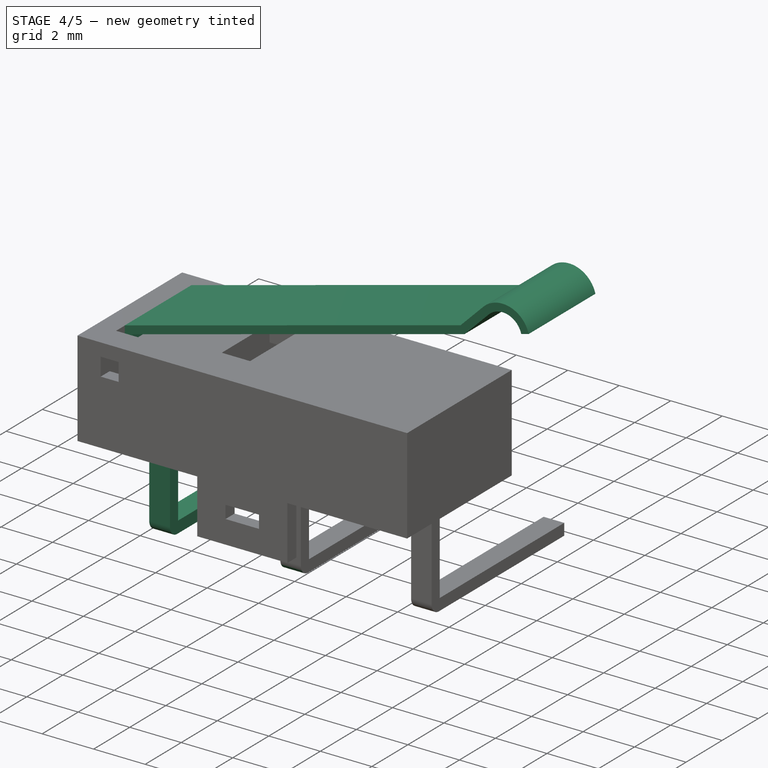
[diagram: stage 4 of 5 — iso view after this stage's code; geometry added in this stage tinted green]
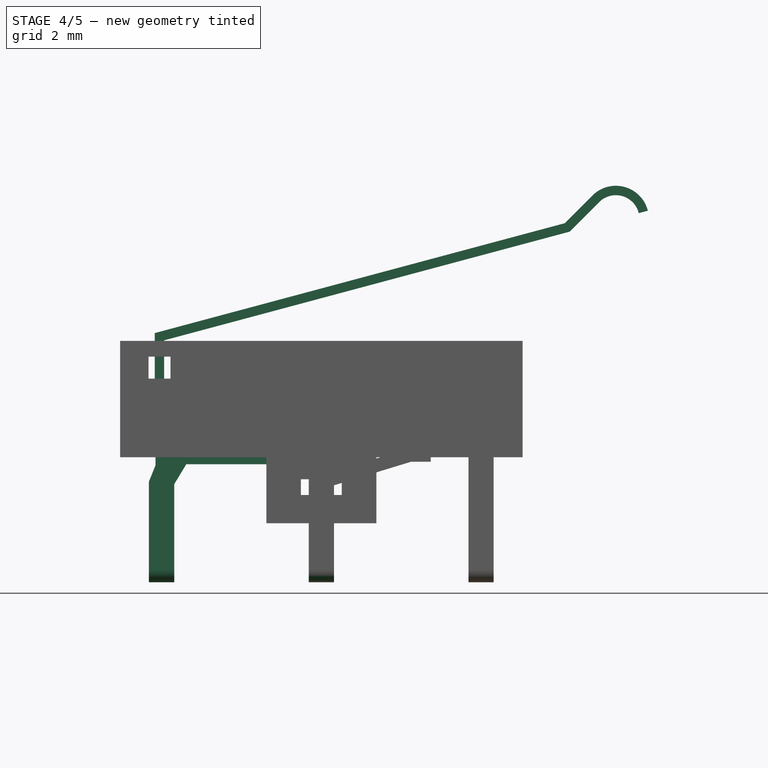
[diagram: stage 4 of 5 — front view after this stage's code; geometry added in this stage tinted green]
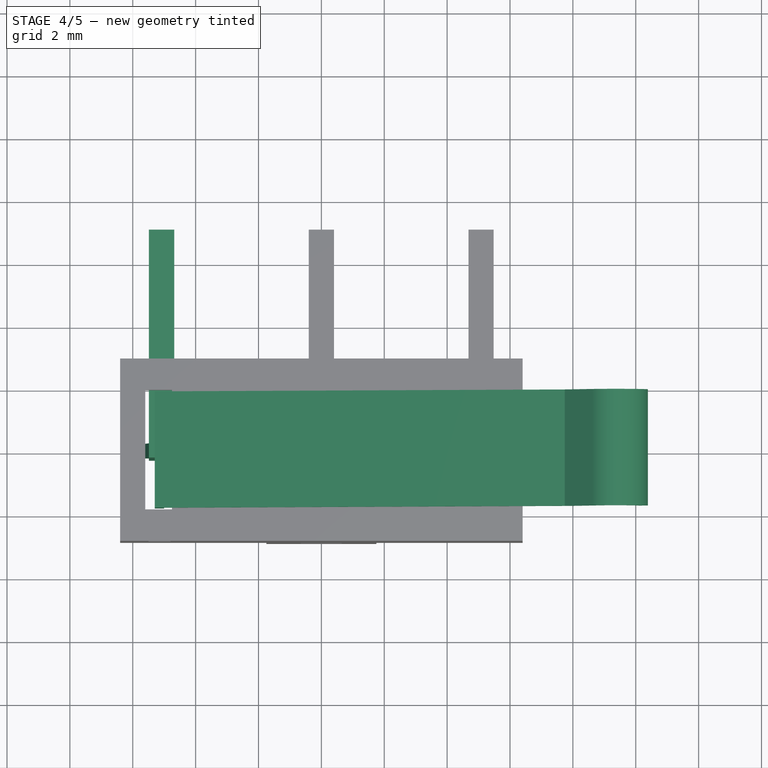
[diagram: stage 4 of 5 — top view after this stage's code; geometry added in this stage tinted green]
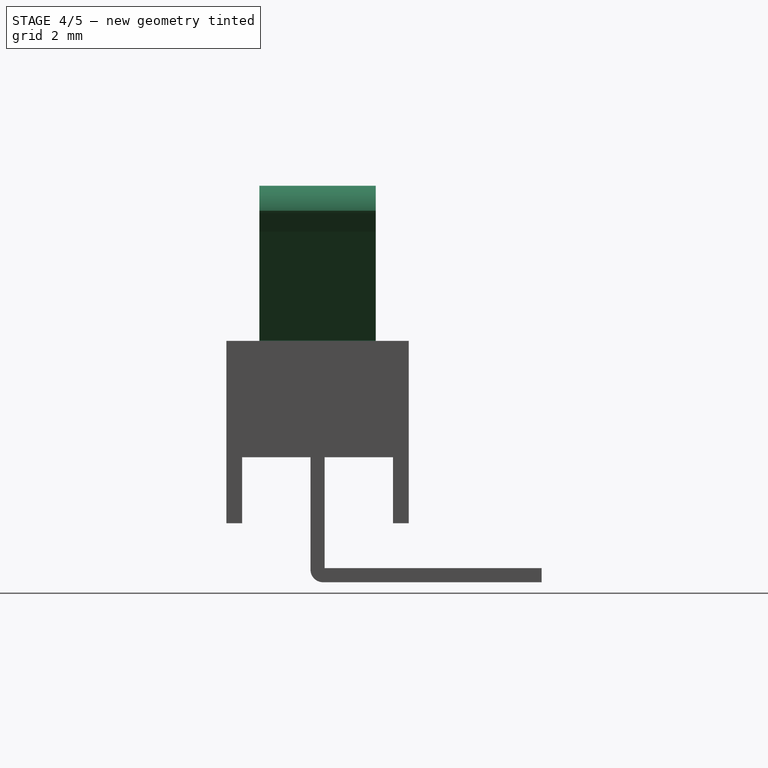
[diagram: stage 4 of 5 — right view after this stage's code; geometry added in this stage tinted green]
FEATURE [PartDesign::ShapeBinder] ShapeBinder001
  Placement = pos=(0,-0.225,0) rot=(0,0,1;0rad)
  Support = -> [Pad001]
  TraceSupport = false
FEATURE [PartDesign::ShapeBinder] ShapeBinder002
  Placement = pos=(0,-0.225,0) rot=(0,0,1;0rad)
  Support = -> [Pad002]
  TraceSupport = false
FEATURE [Sketcher::SketchObject] Sketch003
  ExternalGeometry = -> [ShapeBinder001,ShapeBinder002]
  FullyConstrained = false
  MapMode = 5
  Placement = pos=(0,0,0) rot=(1,0,0;1.5708rad)
  Support = -> [XZ_Plane004]
  sketch-geometry (17):
    g0: LineSegment StartX=-5.48613 StartY=0.573115 StartZ=0 EndX=-5.48613 EndY=-2.625 EndZ=0
    g1: LineSegment StartX=-4.68 StartY=0.494309 StartZ=0 EndX=-4.29703 EndY=1.12608 EndZ=0
    g2: LineSegment StartX=-4.29703 StartY=1.12608 StartZ=0 EndX=-1.12486 EndY=1.12608 EndZ=0
    g3: LineSegment StartX=-1.12486 StartY=1.12608 StartZ=0 EndX=-1.12486 EndY=1.90154 EndZ=0
    g4: LineSegment StartX=-1.12486 StartY=1.90154 StartZ=0 EndX=-0.654846 EndY=1.90154 EndZ=0
    g5: LineSegment StartX=-0.654846 StartY=1.90154 StartZ=0 EndX=-1.19401 EndY=3.7 EndZ=0
    g6: LineSegment StartX=-1.19401 StartY=3.7 StartZ=0 EndX=-1.69401 EndY=3.7 EndZ=0
    g7: LineSegment StartX=-1.69401 StartY=3.7 StartZ=0 EndX=-1.69401 EndY=2.23443 EndZ=0
    g8: LineSegment StartX=-1.69401 StartY=2.23443 StartZ=0 EndX=-4.63708 EndY=2.23443 EndZ=0
    g9: LineSegment StartX=-4.63708 StartY=2.23443 StartZ=0 EndX=-4.63708 EndY=3.7 EndZ=0
    g10: LineSegment StartX=-4.63708 StartY=3.7 StartZ=0 EndX=-5.48708 EndY=3.7 EndZ=0
    g11: LineSegment StartX=-5.48708 StartY=3.7 StartZ=0 EndX=-5.74689 EndY=1.90154 EndZ=0
    g12: LineSegment StartX=-5.74689 StartY=1.90154 StartZ=0 EndX=-5.27688 EndY=1.90154 EndZ=0
    g13: LineSegment StartX=-5.27688 StartY=1.90154 StartZ=0 EndX=-5.27688 EndY=1.09492 EndZ=0
    g14: LineSegment StartX=-5.27688 StartY=1.09492 StartZ=0 EndX=-5.48613 EndY=0.573115 EndZ=0
    g15: LineSegment StartX=-5.48613 StartY=-2.625 StartZ=0 EndX=-4.68 EndY=-2.625 EndZ=0
    g16: LineSegment StartX=-4.68 StartY=-2.625 StartZ=0 EndX=-4.68 EndY=0.494309 EndZ=0
  constraints (38):
    c: Vertical(g0)
    c: Coincident(g1,g2)
    c: Horizontal(g2)
    c: Coincident(g2,g3)
    c: Vertical(g3)
    c: Coincident(g3,g4)
    c: Horizontal(g4)
    c: Coincident(g4,g5)
    c: Coincident(g5,g6)
    c: Horizontal(g6)
    c: Coincident(g6,g7)
    c: Vertical(g7)
    c: Coincident(g7,g8)
    c: Horizontal(g8)
    c: Coincident(g8,g9)
    c: Vertical(g9)
    c: Coincident(g9,g10)
    c: Horizontal(g10)
    c: Coincident(g10,g11)
    c: Coincident(g11,g12)
    c: Horizontal(g12)
    c: Coincident(g12,g13)
    c: Vertical(g13)
    c: Coincident(g13,g14)
    c: Coincident(g14,g0)
    c: Horizontal(g6,g9)
    c: Horizontal(g5,g-9)
    c: Horizontal(g12,g3)
    c: Equal(g4,g12)
    c: DistanceX(g6,g6) = 0.5
    c: DistanceX(g10,g10) = 0.85
    c: Coincident(g0,g15)
    c: Horizontal(g15)
    c: Coincident(g15,g16)
    c: Coincident(g16,g1)
    c: Vertical(g16)
    c: Horizontal(g15,g-4)
    c: DistanceX(g1,g-6) = 4.28
FEATURE [PartDesign::Pad] Pad003
  Direction = (0,-1,-2e-16)
  Length = 0.45
  Length2 = 100
  Midplane = true
  Placement = pos=(0,0,0) rot=(1,0,0;1.5708rad)
  Profile = -> Sketch003
  ReferenceAxis = -> Sketch003 [N_Axis]
  Type = 0
FEATURE [PartDesign::ShapeBinder] ShapeBinder004
  Placement = pos=(0,0,0) rot=(1,0,0;1.5708rad)
  TraceSupport = false
FEATURE [PartDesign::Body] Body005  label="Button"
  Group = -> [Sketch010,Pad006,Sketch011,Pocket004,ShapeBinder004]
  Origin = -> Origin006
  Tip = -> Pocket004
FEATURE [Sketcher::SketchObject] Sketch014
  FullyConstrained = false
  MapMode = 5
  Placement = pos=(0,0,0) rot=(1,0,0;1.5708rad)
  Support = -> [XZ_Plane007]
  sketch-geometry (11):
    g0: LineSegment StartX=-5.3 StartY=5.3 StartZ=0 EndX=-5.3 EndY=3.85 EndZ=0
    g1: LineSegment StartX=-5.3 StartY=3.85 StartZ=0 EndX=-5 EndY=3.85 EndZ=0
    g2: LineSegment StartX=-5 StartY=3.85 StartZ=0 EndX=-5 EndY=5.0698 EndZ=0
    g3: LineSegment StartX=-5 StartY=5.0698 StartZ=0 EndX=7.89529 EndY=8.52508 EndZ=0
    g4: LineSegment StartX=-5.3 StartY=5.3 StartZ=0 EndX=7.74 EndY=8.79406 EndZ=0
    g5: ArcOfCircle CenterX=9.36634 CenterY=8.93548 CenterZ=0 NormalX=0 NormalY=0 NormalZ=1 AngleXU=0 Radius=0.75 StartAngle=0.2409 EndAngle=2.35619
    g6: ArcOfCircle CenterX=9.36634 CenterY=8.93548 CenterZ=0 NormalX=0 NormalY=0 NormalZ=1 AngleXU=0 Radius=1.05 StartAngle=0.246872 EndAngle=2.35619
    g7: LineSegment StartX=8.62388 StartY=9.67794 StartZ=0 EndX=7.74 EndY=8.79406 EndZ=0
    g8: LineSegment StartX=8.83601 StartY=9.46581 StartZ=0 EndX=7.89529 EndY=8.52508 EndZ=0
    g9: LineSegment StartX=7.89529 StartY=8.52508 StartZ=0 EndX=4.10037 EndY=7.50824 EndZ=0
    g10: LineSegment StartX=10.0947 StartY=9.11441 StartZ=0 EndX=10.3845 EndY=9.19207 EndZ=0
  constraints (32):
    c: Vertical(g0)
    c: Coincident(g0,g1)
    c: Coincident(g1,g2)
    c: Vertical(g2)
    c: Coincident(g2,g3)
    c: Coincident(g0,g4)
    c: Horizontal(g1)
    c: Parallel(g4,g3)
    c: Distance(g3,g4) = 0.3
    c: DistanceX(g1,g1) = 0.3
    c: Coincident(g6,g5)
    c: Coincident(g7,g4)
    c: Coincident(g8,g3)
    c: Parallel(g8,g7)
    c: Diameter(g5) = 1.5
    c: Diameter(g6) = 2.1
    c: Coincident(g9,g3)
    c: Parallel(g9,g3)
    c: PointOnObject(g6,g9)
    c: PointOnObject(g5,g9)
    c: Tangent(g6,g7) = -1.5708
    c: Tangent(g5,g8) = -1.5708
    c: Coincident(g10,g5)
    c: Coincident(g10,g6)
    c: Distance(g4) = 13.5
    c: Angle(g2,g3) = 1.8326
    c: DistanceX(g1,g-1) = 5
    c: DistanceY(g-1,g1) = 3.85
    c: DistanceY(g0,g0) = 1.45
    c: Angle(g7,g4) = 2.61799
    c: Distance(g7) = 1.25
    c: DistanceY(g-1,g6) = 9.19207
FEATURE [PartDesign::Pad] Pad007
  Direction = (0,-1,-2e-16)
  Length = 3.7
  Length2 = 100
  Midplane = true
  Placement = pos=(0,0,0) rot=(1,0,0;1.5708rad)
  Profile = -> Sketch014
  ReferenceAxis = -> Sketch014 [N_Axis]
  Type = 0
FEATURE [PartDesign::Body] Body006  label="Lever"
  Group = -> [Sketch014,Pad007,Sketch015,Pocket007,Sketch016,Pad008,Sketch017,Pad009]
  Origin = -> Origin007
  Tip = -> Pad009
FEATURE [Sketcher::SketchObject] Sketch023
  ExternalGeometry = -> [Pad003]
  FullyConstrained = true
  MapMode = 5
  Placement = pos=(0,0.225,0) rot=(-1,0,0;1.5708rad)
  Support = -> [Pad003]
  sketch-geometry (4):
    g0: LineSegment StartX=-5.48613 StartY=2.625 StartZ=0 EndX=-4.68 EndY=2.625 EndZ=0
    g1: LineSegment StartX=-4.68 StartY=2.625 StartZ=0 EndX=-4.68 EndY=2.175 EndZ=0
    g2: LineSegment StartX=-4.68 StartY=2.175 StartZ=0 EndX=-5.48613 EndY=2.175 EndZ=0
    g3: LineSegment StartX=-5.48613 StartY=2.175 StartZ=0 EndX=-5.48613 EndY=2.625 EndZ=0
  constraints (11):
    c: Coincident(g0,g1)
    c: Coincident(g1,g2)
    c: Coincident(g2,g3)
    c: Coincident(g3,g0)
    c: Horizontal(g0)
    c: Horizontal(g2)
    c: Vertical(g1)
    c: Vertical(g3)
    c: Coincident(g0,g-3)
    c: PointOnObject(g1,g-4)
    c: DistanceY(g1,g1) = 0.45
FEATURE [PartDesign::Pad] Pad015
  BaseFeature = -> Pad003
  Direction = (0,1,2e-16)
  Length = 6.9
  Length2 = 100
  Placement = pos=(0,0,0) rot=(1,0,0;1.5708rad)
  Profile = -> Sketch023
  ReferenceAxis = -> Sketch023 [N_Axis]
  Type = 0
FEATURE [PartDesign::Fillet] Fillet004
  Base = -> Pad015 [Edge11]
  BaseFeature = -> Pad015
  Placement = pos=(0,0,0) rot=(1,0,0;1.5708rad)
  Radius = 0.4
  SupportTransform = false
  UseAllEdges = false
FEATURE [PartDesign::Fillet] Fillet
  Base = -> Pad016 [Edge8]
  BaseFeature = -> Pad016
  Placement = pos=(0,0,0) rot=(1,0,0;1.5708rad)
  Radius = 0.4
  SupportTransform = false
  UseAllEdges = false
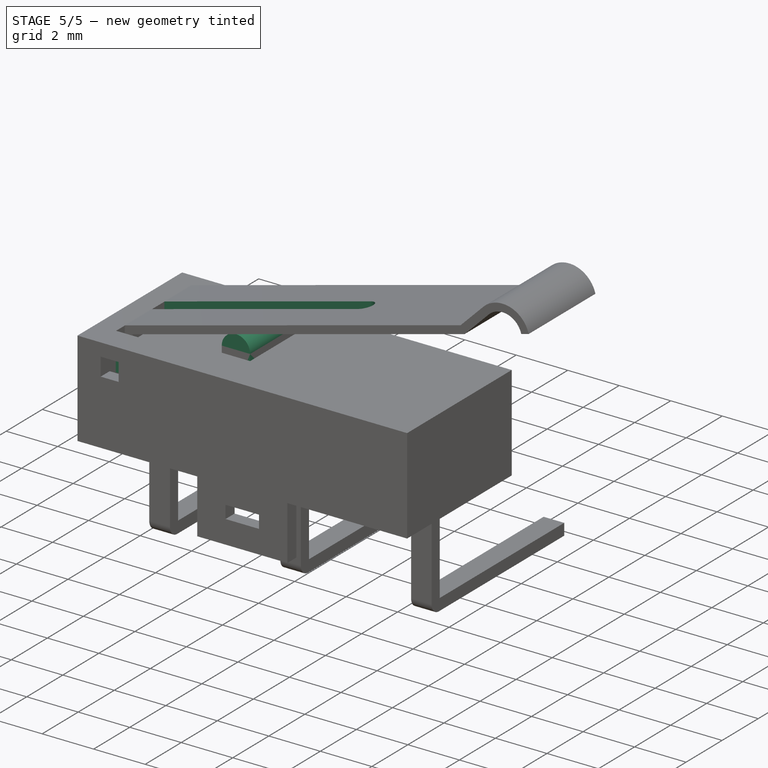
[diagram: stage 5 of 5 — iso view after this stage's code; geometry added in this stage tinted green]
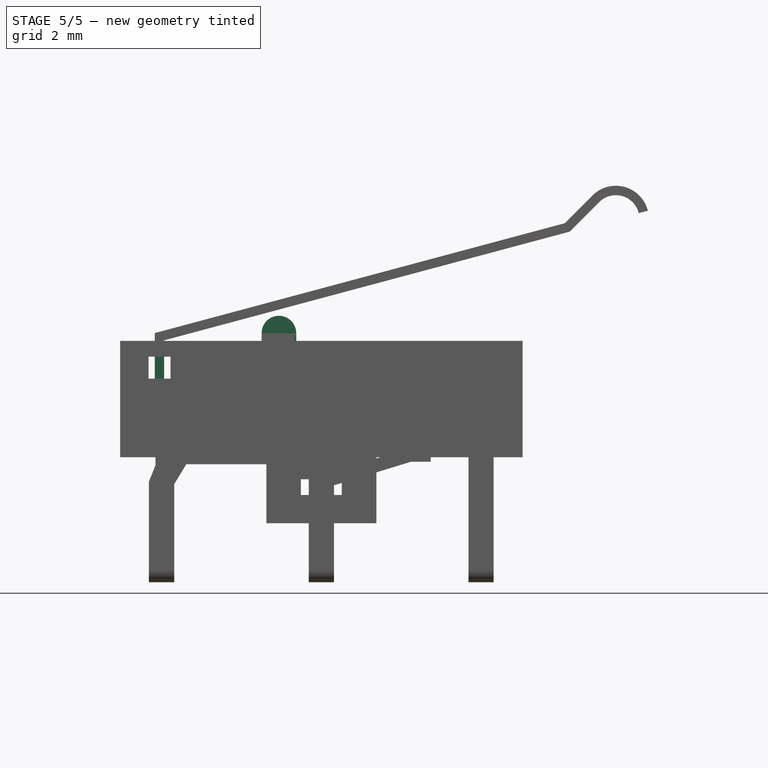
[diagram: stage 5 of 5 — front view after this stage's code; geometry added in this stage tinted green]
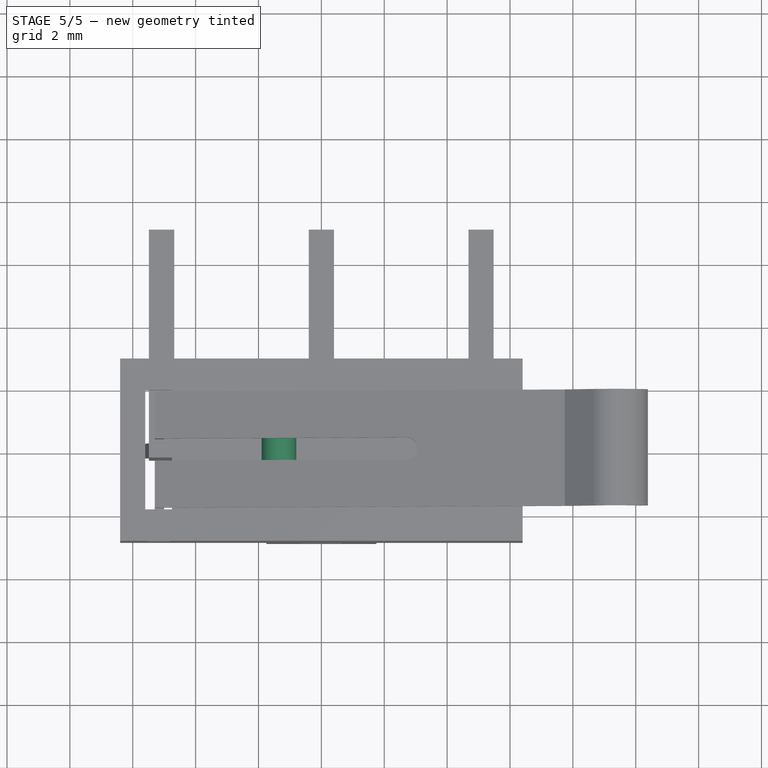
[diagram: stage 5 of 5 — top view after this stage's code; geometry added in this stage tinted green]
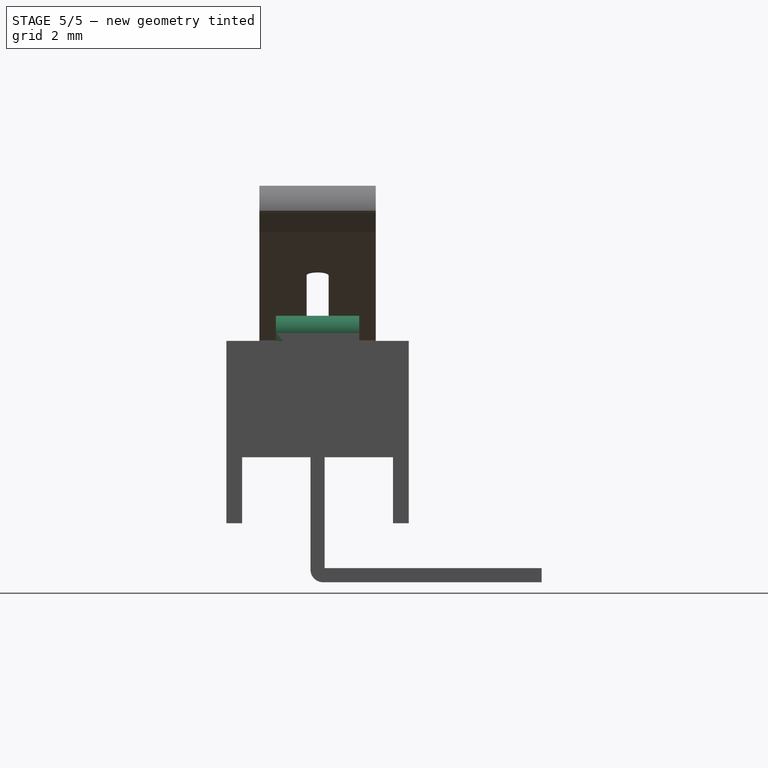
[diagram: stage 5 of 5 — right view after this stage's code; geometry added in this stage tinted green]
FEATURE [Sketcher::SketchObject] Sketch010
  FullyConstrained = false
  MapMode = 5
  Placement = pos=(0,0,0) rot=(1,0,0;1.5708rad)
  Support = -> [XZ_Plane006]
  sketch-geometry (4):
    g0: LineSegment StartX=-0.8 StartY=5.3 StartZ=0 EndX=-0.8 EndY=2.5 EndZ=0
    g1: LineSegment StartX=-0.8 StartY=2.5 StartZ=0 EndX=-1.9 EndY=2.5 EndZ=0
    g2: LineSegment StartX=-1.9 StartY=2.5 StartZ=0 EndX=-1.9 EndY=5.3 EndZ=0
    g3: ArcOfCircle CenterX=-1.35 CenterY=5.3 CenterZ=0 NormalX=0 NormalY=0 NormalZ=1 AngleXU=0 Radius=0.55 StartAngle=-9e-16 EndAngle=3.14159
  constraints (12):
    c: Coincident(g0,g1)
    c: Coincident(g1,g2)
    c: Horizontal(g1)
    c: Vertical(g0)
    c: Vertical(g2)
    c: DistanceX(g2,g0) = 1.1
    c: DistanceY(g0,g0) = 2.8
    c: DistanceX(g0,g-1) = 0.8
    c: Coincident(g3,g0)
    c: Coincident(g3,g2)
    c: Horizontal(g3,g0)
    c: Horizontal(g2,g3)
FEATURE [PartDesign::Pad] Pad006
  Direction = (0,-1,-2e-16)
  Length = 4.1
  Length2 = 100
  Midplane = true
  Placement = pos=(0,0,0) rot=(1,0,0;1.5708rad)
  Profile = -> Sketch010
  ReferenceAxis = -> Sketch010 [N_Axis]
  Type = 0
FEATURE [Sketcher::SketchObject] Sketch011
  ExternalGeometry = -> [Pad006]
  FullyConstrained = true
  MapMode = 5
  Placement = pos=(-0.8,0,0) rot=(0.707107,0,0.707107;3.14159rad)
  Support = -> [Pad006]
  sketch-geometry (8):
    g0: LineSegment StartX=6 StartY=1.325 StartZ=0 EndX=2.5 EndY=1.325 EndZ=0
    g1: LineSegment StartX=2.5 StartY=-1.325 StartZ=0 EndX=6 EndY=-1.325 EndZ=0
    g2: LineSegment StartX=2.5 StartY=2.05 StartZ=0 EndX=6 EndY=2.05 EndZ=0
    g3: LineSegment StartX=6 StartY=2.05 StartZ=0 EndX=6 EndY=1.325 EndZ=0
    g4: LineSegment StartX=6 StartY=-2.05 StartZ=0 EndX=2.5 EndY=-2.05 EndZ=0
    g5: LineSegment StartX=2.5 StartY=2.05 StartZ=0 EndX=2.5 EndY=1.325 EndZ=0
    g6: LineSegment StartX=2.5 StartY=-1.325 StartZ=0 EndX=2.5 EndY=-2.05 EndZ=0
    g7: LineSegment StartX=6 StartY=-1.325 StartZ=0 EndX=6 EndY=-2.05 EndZ=0
  constraints (23):
    c: Horizontal(g0)
    c: Horizontal(g1)
    c: PointOnObject(g1,g-5)
    c: DistanceY(g-6,g-6) = 4.1
    c: DistanceY(g1,g0) = 2.65
    c: Coincident(g2,g3)
    c: Coincident(g7,g4)
    c: Horizontal(g2)
    c: Horizontal(g4)
    c: Vertical(g3)
    c: Coincident(g2,g-5)
    c: Coincident(g4,g-5)
    c: Coincident(g5,g2)
    c: Coincident(g5,g0)
    c: Coincident(g6,g1)
    c: Coincident(g6,g4)
    c: Vertical(g5)
    c: Equal(g5,g6)
    c: DistanceX(g2,g2) = 3.5
    c: Coincident(g3,g0)
    c: Coincident(g7,g1)
    c: Vertical(g7)
    c: Vertical(g1,g0)
FEATURE [PartDesign::Pocket] Pocket004
  BaseFeature = -> Pad006
  Direction = (-1,0,2e-16)
  Length = 1.7
  Length2 = 100
  Placement = pos=(0,0,0) rot=(1,0,0;1.5708rad)
  Profile = -> Sketch011
  ReferenceAxis = -> Sketch011 [N_Axis]
  Type = 0
FEATURE [Sketcher::SketchObject] Sketch015
  ExternalGeometry = -> [Pad007]
  FullyConstrained = true
  MapMode = 5
  Placement = pos=(0,0,3.85) rot=(1,0,0;3.14159rad)
  Support = -> [Pad007]
  sketch-geometry (4):
    g0: ArcOfCircle CenterX=-5.3 CenterY=0 CenterZ=0 NormalX=0 NormalY=0 NormalZ=1 AngleXU=0 Radius=0.35 StartAngle=1.5708 EndAngle=4.71239
    g1: ArcOfCircle CenterX=2.7 CenterY=0 CenterZ=0 NormalX=0 NormalY=0 NormalZ=1 AngleXU=0 Radius=0.35 StartAngle=4.71239 EndAngle=7.85398
    g2: LineSegment StartX=-5.3 StartY=-0.35 StartZ=0 EndX=2.7 EndY=-0.35 EndZ=0
    g3: LineSegment StartX=2.7 StartY=0.35 StartZ=0 EndX=-5.3 EndY=0.35 EndZ=0
  constraints (10):
    c: Tangent(g0,g2) = -1.5708
    c: Tangent(g2,g1) = -1.5708
    c: Tangent(g1,g3) = -1.5708
    c: Tangent(g3,g0) = -1.5708
    c: Equal(g0,g1)
    c: PointOnObject(g0,g-1)
    c: PointOnObject(g1,g-1)
    c: Diameter(g1) = 0.7
    c: DistanceX(g3,g3) = 8
    c: PointOnObject(g0,g-3)
FEATURE [PartDesign::Pocket] Pocket007
  BaseFeature = -> Pad007
  Direction = (0,-2e-16,1)
  Length = 5
  Length2 = 100
  Placement = pos=(0,0,0) rot=(1,0,0;1.5708rad)
  Profile = -> Sketch015
  ReferenceAxis = -> Sketch015 [N_Axis]
  Type = 1
FEATURE [Sketcher::SketchObject] Sketch016
  ExternalGeometry = -> [Pocket007]
  FullyConstrained = true
  MapMode = 5
  Placement = pos=(0,-1.85,-4e-16) rot=(1,0,0;1.5708rad)
  Support = -> [Pocket007]
  sketch-geometry (4):
    g0: LineSegment StartX=-5 StartY=3.85 StartZ=0 EndX=-5.3 EndY=3.85 EndZ=0
    g1: LineSegment StartX=-5.3 StartY=3.85 StartZ=0 EndX=-5.3 EndY=4.55 EndZ=0
    g2: LineSegment StartX=-5.3 StartY=4.55 StartZ=0 EndX=-5 EndY=4.55 EndZ=0
    g3: LineSegment StartX=-5 StartY=4.55 StartZ=0 EndX=-5 EndY=3.85 EndZ=0
  constraints (11):
    c: Coincident(g0,g1)
    c: Coincident(g1,g2)
    c: Coincident(g2,g3)
    c: Coincident(g3,g0)
    c: Horizontal(g0)
    c: Horizontal(g2)
    c: Vertical(g1)
    c: Vertical(g3)
    c: Coincident(g0,g-4)
    c: PointOnObject(g1,g-3)
    c: DistanceY(g1,g1) = 0.7
FEATURE [PartDesign::Pad] Pad008
  BaseFeature = -> Pocket007
  Direction = (0,-1,-2e-16)
  Length = 0.5
  Length2 = 100
  Placement = pos=(0,0,0) rot=(1,0,0;1.5708rad)
  Profile = -> Sketch016
  ReferenceAxis = -> Sketch016 [N_Axis]
  Type = 0
FEATURE [Sketcher::SketchObject] Sketch017
  ExternalGeometry = -> [Pad008]
  FullyConstrained = true
  MapMode = 5
  Placement = pos=(0,1.85,4e-16) rot=(-1,0,0;1.5708rad)
  Support = -> [Pad008]
  sketch-geometry (4):
    g0: LineSegment StartX=-5 StartY=-3.85 StartZ=0 EndX=-5.3 EndY=-3.85 EndZ=0
    g1: LineSegment StartX=-5.3 StartY=-3.85 StartZ=0 EndX=-5.3 EndY=-4.55 EndZ=0
    g2: LineSegment StartX=-5.3 StartY=-4.55 StartZ=0 EndX=-5 EndY=-4.55 EndZ=0
    g3: LineSegment StartX=-5 StartY=-4.55 StartZ=0 EndX=-5 EndY=-3.85 EndZ=0
  constraints (11):
    c: Coincident(g0,g1)
    c: Coincident(g1,g2)
    c: Coincident(g2,g3)
    c: Coincident(g3,g0)
    c: Horizontal(g0)
    c: Horizontal(g2)
    c: Vertical(g1)
    c: Vertical(g3)
    c: Coincident(g0,g-3)
    c: PointOnObject(g1,g-4)
    c: DistanceY(g1,g1) = 0.7
FEATURE [PartDesign::Pad] Pad009
  BaseFeature = -> Pad008
  Direction = (0,1,2e-16)
  Length = 0.5
  Length2 = 100
  Placement = pos=(0,0,0) rot=(1,0,0;1.5708rad)
  Profile = -> Sketch017
  ReferenceAxis = -> Sketch017 [N_Axis]
  Type = 0
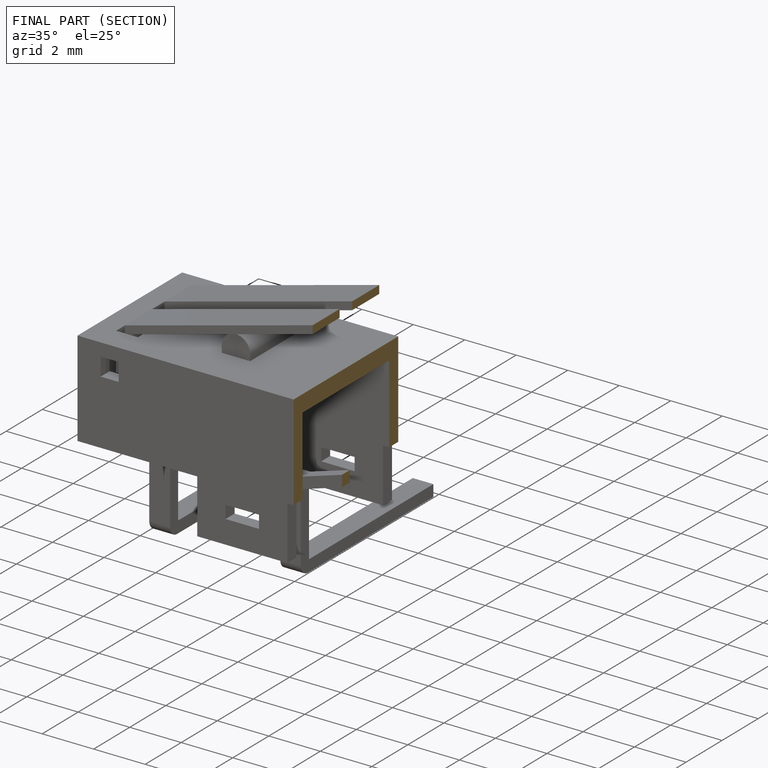
[diagram: finished part — half-section view (interior)]
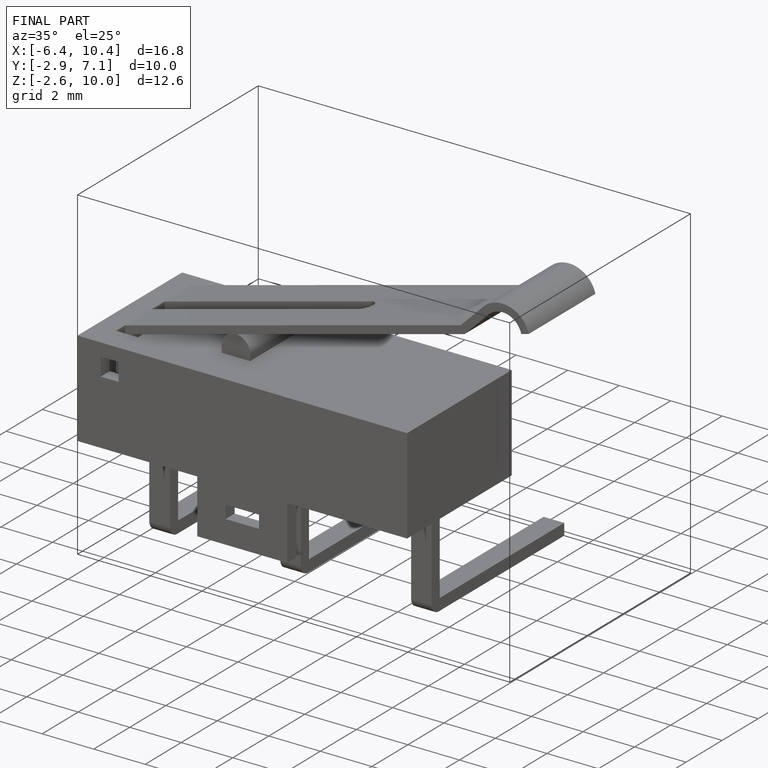
[diagram: finished part — iso view with bounding-box wireframe]
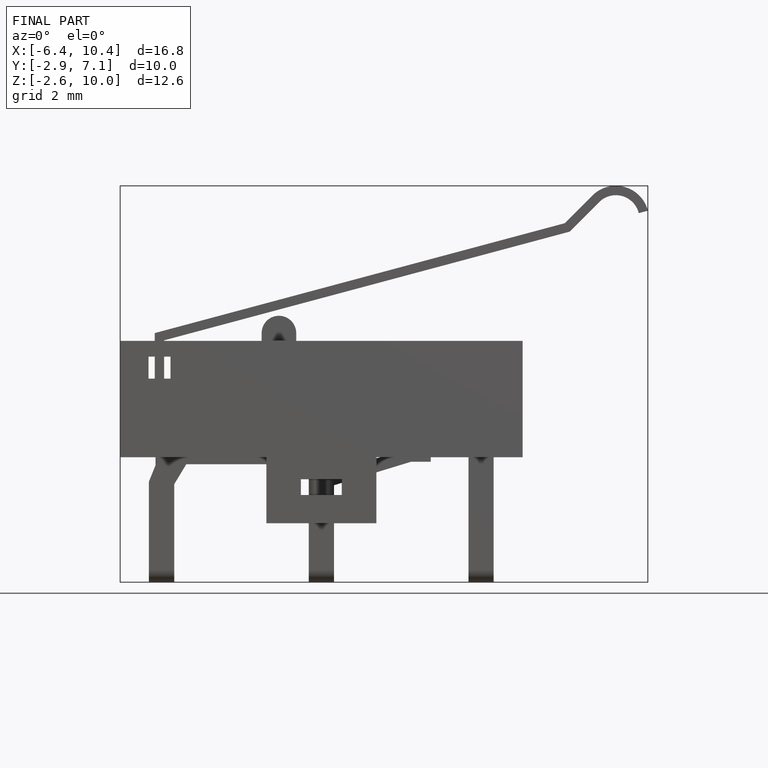
[diagram: finished part — front view with bounding-box wireframe]
